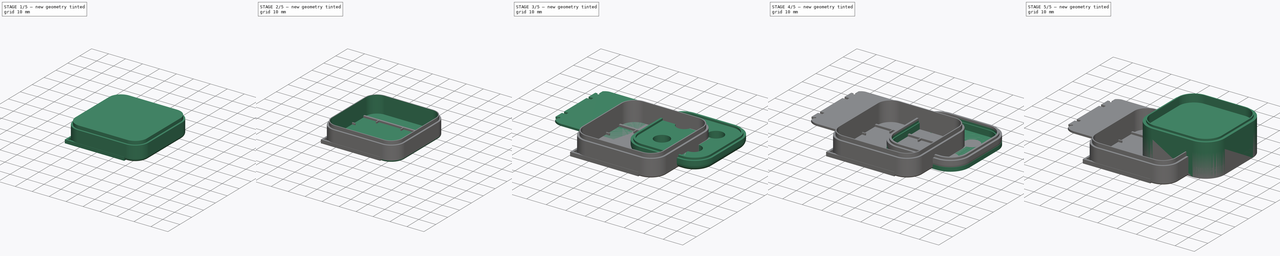
[diagram: build sequence overview — one tinted view per stage of 5, left to right]
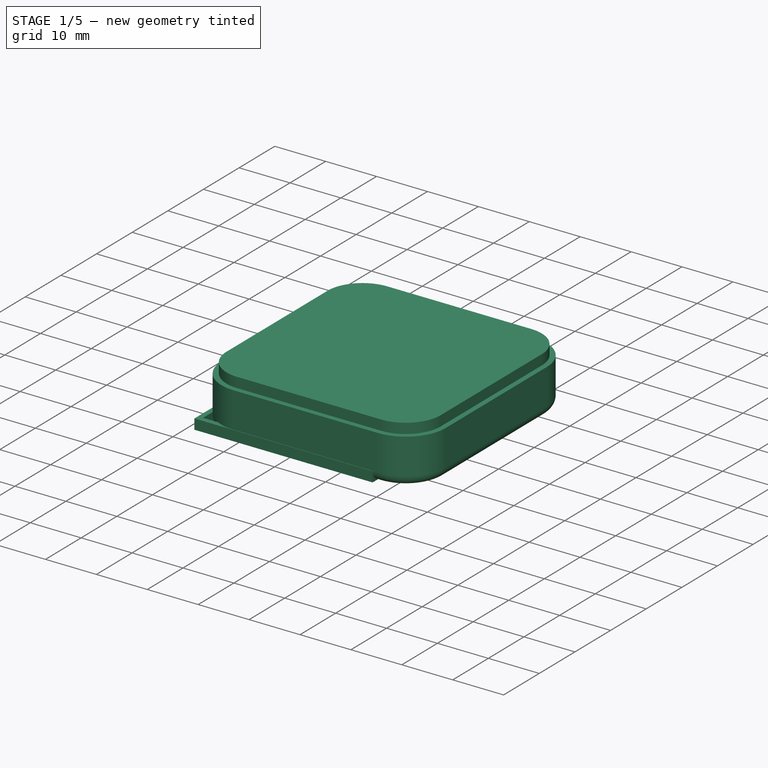
[diagram: stage 1 of 5 — iso view after this stage's code; geometry added in this stage tinted green]
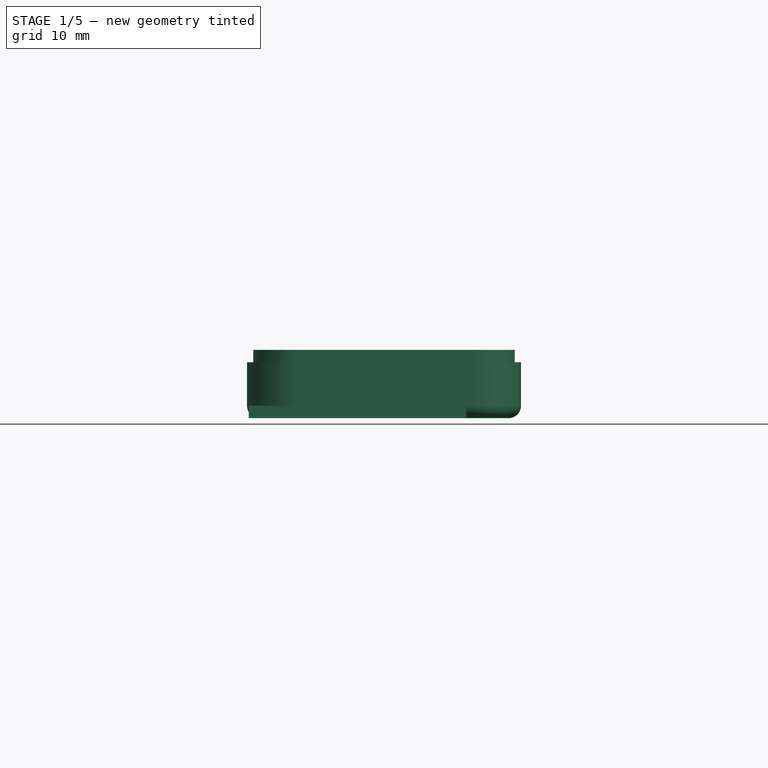
[diagram: stage 1 of 5 — front view after this stage's code; geometry added in this stage tinted green]
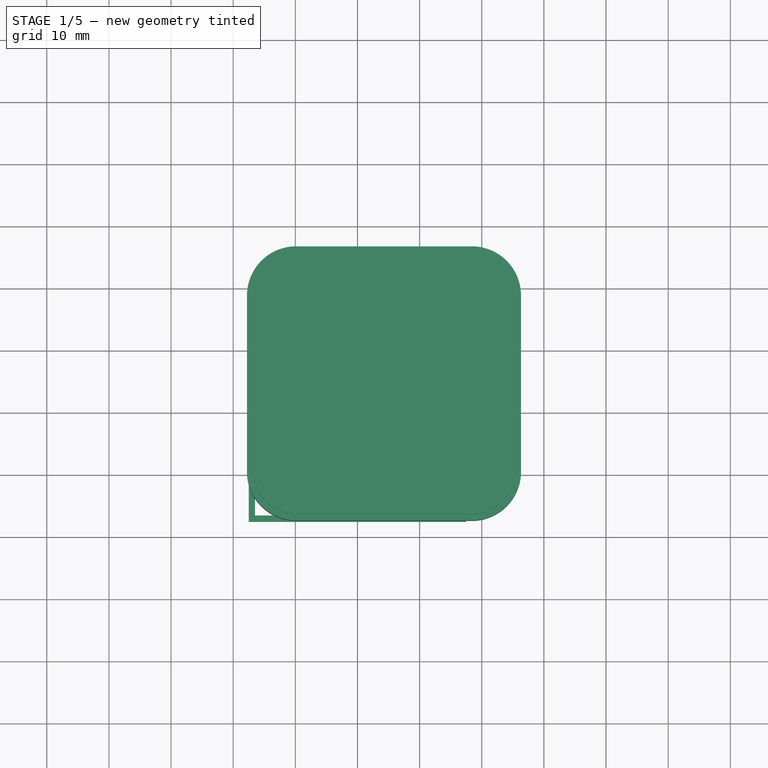
[diagram: stage 1 of 5 — top view after this stage's code; geometry added in this stage tinted green]
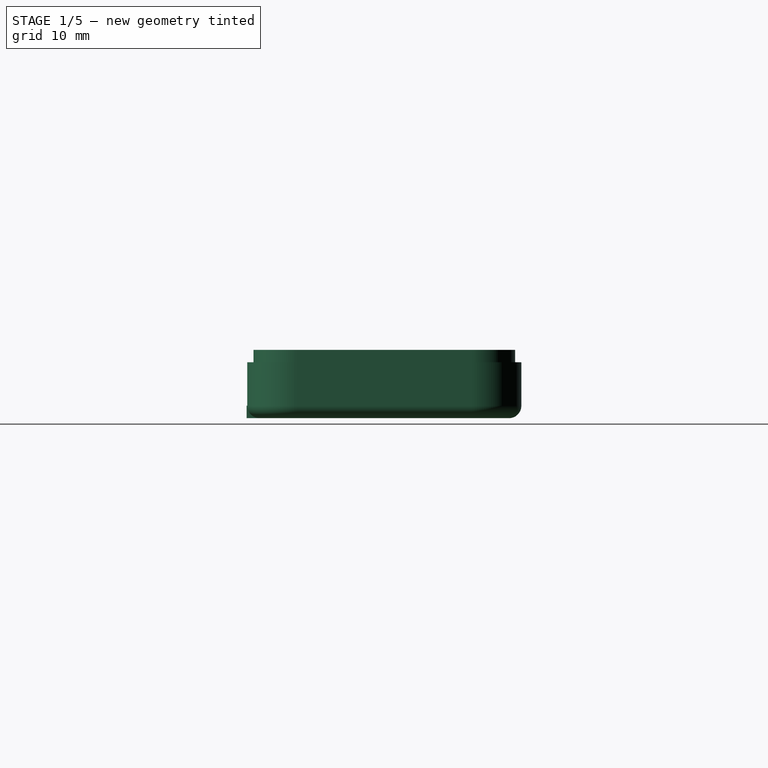
[diagram: stage 1 of 5 — right view after this stage's code; geometry added in this stage tinted green]
FCSTD DOCUMENT  (FreeCAD 1.0R39109 (Git))
Label: Luz
License: All rights reserved
LicenseURL: http://en.wikipedia.org/wiki/All_rights_reserved
objects: Sketcher::SketchObject×33, PartDesign::Pad×12, PartDesign::Pocket×9, PartDesign::Body×8, Image::ImagePlane×4, PartDesign::Fillet×4, Part::Offset2D×3
note: 152 computed .brp shape members not serialized (recipe doc carries the construction recipe); baked Part::Feature solids carry a one-line shape summary decoded from their .brp

FEATURE [Sketcher::SketchObject] Sketch026
  ArcFitTolerance = 1e-06
  AttachmentSupport = -> [XY_Plane005]
  FullyConstrained = false
  MakeInternals = false
  MapMode = 5
  sketch-geometry (4):
    g0: LineSegment StartX=-21.3244 StartY=28.2259 StartZ=0 EndX=-21.3244 EndY=-20.2767 EndZ=0
    g1: LineSegment StartX=-21.3244 StartY=-20.2767 StartZ=0 EndX=-3.339 EndY=-20.2767 EndZ=0
    g2: LineSegment StartX=-3.339 StartY=-20.2767 StartZ=0 EndX=-3.339 EndY=28.2259 EndZ=0
    g3: LineSegment StartX=-3.339 StartY=28.2259 StartZ=0 EndX=-21.3244 EndY=28.2259 EndZ=0
  constraints (8):
    c: Coincident(g0,g1)
    c: Coincident(g1,g2)
    c: Coincident(g2,g3)
    c: Coincident(g3,g0)
    c: Vertical(g0)
    c: Vertical(g2)
    c: Horizontal(g1)
    c: Horizontal(g3)
FEATURE [PartDesign::Body] Body005  label="Body"
  AllowCompound = false
  Group = -> [Sketch023,Sketch024,Sketch025,Pad008,Pocket005,Pocket006,Fillet002,Sketch026]
  Origin = -> Origin005
  Tip = -> Fillet002
FEATURE [Sketcher::SketchObject] Sketch027
  ArcFitTolerance = 1e-06
  AttachmentOffset = pos=(0,0,1) rot=(0,0,1;0rad)
  AttachmentSupport = -> [XY_Plane006]
  FullyConstrained = false
  MakeInternals = false
  MapMode = 5
  Placement = pos=(0,0,1) rot=(0,0,1;0rad)
  sketch-geometry (10):
    g0: LineSegment StartX=-16.7796 StartY=18.7921 StartZ=0 EndX=-16.7796 EndY=-9.48962 EndZ=0
    g1: LineSegment StartX=-9.87213 StartY=-16.3971 StartZ=0 EndX=18.4096 EndY=-16.3971 EndZ=0
    g2: LineSegment StartX=25.3171 StartY=-9.48962 StartZ=0 EndX=25.3171 EndY=18.7921 EndZ=0
    g3: LineSegment StartX=18.4096 StartY=25.6996 StartZ=0 EndX=-9.87213 EndY=25.6996 EndZ=0
    g4: ArcOfCircle CenterX=-9.87213 CenterY=18.7921 CenterZ=0 NormalX=0 NormalY=0 NormalZ=1 AngleXU=0 Radius=6.90746 StartAngle=1.5708 EndAngle=3.14159
    g5: ArcOfCircle CenterX=-9.87213 CenterY=-9.48962 CenterZ=0 NormalX=0 NormalY=0 NormalZ=1 AngleXU=0 Radius=6.90746 StartAngle=3.14159 EndAngle=4.71239
    g6: ArcOfCircle CenterX=18.4096 CenterY=-9.48962 CenterZ=0 NormalX=0 NormalY=0 NormalZ=1 AngleXU=0 Radius=6.90746 StartAngle=4.71239 EndAngle=6.28319
    g7: ArcOfCircle CenterX=18.4096 CenterY=18.7921 CenterZ=0 NormalX=0 NormalY=0 NormalZ=1 AngleXU=0 Radius=6.90746 StartAngle=0 EndAngle=1.5708
    g8: GeomPoint [constr] X=-16.7796 Y=25.6996 Z=0
    g9: GeomPoint [constr] X=25.3171 Y=-16.3971 Z=0
  constraints (20):
    c: Tangent(g0,g4) = -1.5708
    c: Tangent(g0,g5) = -1.5708
    c: Tangent(g1,g5) = -1.5708
    c: Tangent(g1,g6) = -1.5708
    c: Tangent(g2,g6) = -1.5708
    c: Tangent(g2,g7) = -1.5708
    c: Tangent(g3,g7) = -1.5708
    c: Tangent(g3,g4) = -1.5708
    c: Vertical(g0)
    c: Vertical(g2)
    c: Horizontal(g1)
    c: Horizontal(g3)
    c: Equal(g4,g5)
    c: Equal(g5,g6)
    c: Equal(g6,g7)
    c: PointOnObject(g8,g0)
    c: PointOnObject(g8,g3)
    c: PointOnObject(g9,g1)
    c: PointOnObject(g9,g2)
    c: Equal(g0,g3)
FEATURE [Sketcher::SketchObject] Sketch028
  ArcFitTolerance = 1e-06
  FullyConstrained = false
  MakeInternals = false
  sketch-geometry (8):
    g0: LineSegment StartX=-17.7796 StartY=18.7921 StartZ=0 EndX=-17.7796 EndY=-9.48962 EndZ=0
    g1: ArcOfCircle CenterX=-9.87213 CenterY=-9.48962 CenterZ=0 NormalX=0 NormalY=0 NormalZ=1 AngleXU=0 Radius=7.90746 StartAngle=3.14159 EndAngle=4.71239
    g2: LineSegment StartX=-9.87213 StartY=-17.3971 StartZ=0 EndX=18.4096 EndY=-17.3971 EndZ=0
    g3: ArcOfCircle CenterX=18.4096 CenterY=-9.48962 CenterZ=0 NormalX=0 NormalY=0 NormalZ=1 AngleXU=0 Radius=7.90746 StartAngle=4.71239 EndAngle=6.28319
    g4: LineSegment StartX=26.3171 StartY=-9.48962 StartZ=0 EndX=26.3171 EndY=18.7921 EndZ=0
    g5: ArcOfCircle CenterX=18.4096 CenterY=18.7921 CenterZ=0 NormalX=0 NormalY=0 NormalZ=1 AngleXU=0 Radius=7.90746 StartAngle=0 EndAngle=1.5708
    g6: LineSegment StartX=18.4096 StartY=26.6996 StartZ=0 EndX=-9.87213 EndY=26.6996 EndZ=0
    g7: ArcOfCircle CenterX=-9.87213 CenterY=18.7921 CenterZ=0 NormalX=0 NormalY=0 NormalZ=1 AngleXU=0 Radius=7.90746 StartAngle=1.5708 EndAngle=3.14159
  constraints (12):
    c: Vertical(g0)
    c: Coincident(g0,g1)
    c: Coincident(g1,g2)
    c: Horizontal(g2)
    c: Coincident(g2,g3)
    c: Coincident(g3,g4)
    c: Vertical(g4)
    c: Coincident(g4,g5)
    c: Coincident(g5,g6)
    c: Horizontal(g6)
    c: Coincident(g6,g7)
    c: Coincident(g7,g0)
FEATURE [PartDesign::Pad] Pad009
  Direction = (0,0,1)
  Length = 9
  Length2 = 10
  Profile = -> Sketch028
  ReferenceAxis = -> Sketch028 [N_Axis]
  Suppressed = false
  Type = 0
FEATURE [PartDesign::Pocket] Pocket008
  BaseFeature = -> Pad009
  Direction = (0,0,-1)
  Length = 5
  Length2 = 5
  Profile = -> Sketch027
  ReferenceAxis = -> Sketch027 [N_Axis]
  Reversed = true
  Suppressed = false
  Type = 1
FEATURE [PartDesign::Fillet] Fillet003
  Base = -> Pocket008 [Edge15]
  BaseFeature = -> Pocket008
  Radius = 2
  SupportTransform = false
  Suppressed = false
  UseAllEdges = false
FEATURE [Sketcher::SketchObject] Sketch029
  ArcFitTolerance = 1e-06
  AttachmentOffset = pos=(0,0,1) rot=(0,0,1;0rad)
  AttachmentSupport = -> [XY_Plane006]
  FullyConstrained = false
  MakeInternals = false
  MapMode = 5
  Placement = pos=(0,0,1) rot=(0,0,1;0rad)
  sketch-geometry (10):
    g0: LineSegment StartX=-16.7796 StartY=18.7921 StartZ=0 EndX=-16.7796 EndY=-9.48962 EndZ=0
    g1: LineSegment StartX=-9.87213 StartY=-16.3971 StartZ=0 EndX=18.4096 EndY=-16.3971 EndZ=0
    g2: LineSegment StartX=25.3171 StartY=-9.48962 StartZ=0 EndX=25.3171 EndY=18.7921 EndZ=0
    g3: LineSegment StartX=18.4096 StartY=25.6996 StartZ=0 EndX=-9.87213 EndY=25.6996 EndZ=0
    g4: ArcOfCircle CenterX=-9.87213 CenterY=18.7921 CenterZ=0 NormalX=0 NormalY=0 NormalZ=1 AngleXU=0 Radius=6.90746 StartAngle=1.5708 EndAngle=3.14159
    g5: ArcOfCircle CenterX=-9.87213 CenterY=-9.48962 CenterZ=0 NormalX=0 NormalY=0 NormalZ=1 AngleXU=0 Radius=6.90746 StartAngle=3.14159 EndAngle=4.71239
    g6: ArcOfCircle CenterX=18.4096 CenterY=-9.48962 CenterZ=0 NormalX=0 NormalY=0 NormalZ=1 AngleXU=0 Radius=6.90746 StartAngle=4.71239 EndAngle=6.28319
    g7: ArcOfCircle CenterX=18.4096 CenterY=18.7921 CenterZ=0 NormalX=0 NormalY=0 NormalZ=1 AngleXU=0 Radius=6.90746 StartAngle=0 EndAngle=1.5708
    g8: GeomPoint [constr] X=-16.7796 Y=25.6996 Z=0
    g9: GeomPoint [constr] X=25.3171 Y=-16.3971 Z=0
  constraints (20):
    c: Tangent(g0,g4) = -1.5708
    c: Tangent(g0,g5) = -1.5708
    c: Tangent(g1,g5) = -1.5708
    c: Tangent(g1,g6) = -1.5708
    c: Tangent(g2,g6) = -1.5708
    c: Tangent(g2,g7) = -1.5708
    c: Tangent(g3,g7) = -1.5708
    c: Tangent(g3,g4) = -1.5708
    c: Vertical(g0)
    c: Vertical(g2)
    c: Horizontal(g1)
    c: Horizontal(g3)
    c: Equal(g4,g5)
    c: Equal(g5,g6)
    c: Equal(g6,g7)
    c: PointOnObject(g8,g0)
    c: PointOnObject(g8,g3)
    c: PointOnObject(g9,g1)
    c: PointOnObject(g9,g2)
    c: Equal(g0,g3)
FEATURE [PartDesign::Pad] Pad010
  BaseFeature = -> Fillet003
  Direction = (0,0,1)
  Length = 10
  Length2 = 10
  Profile = -> Sketch029
  ReferenceAxis = -> Sketch029 [N_Axis]
  Suppressed = false
  Type = 0
FEATURE [Sketcher::SketchObject] Sketch031
  ArcFitTolerance = 1e-06
  AttachmentSupport = -> [XY_Plane006]
  FullyConstrained = false
  MakeInternals = false
  MapMode = 5
  sketch-geometry (36):
    g0: ArcOfCircle CenterX=-7.75329 CenterY=32.6278 CenterZ=0 NormalX=0 NormalY=0 NormalZ=1 AngleXU=0 Radius=0.745564 StartAngle=1.66961 EndAngle=4.67807
    g1: LineSegment StartX=-5.89907 StartY=15.4976 StartZ=0 EndX=-8.49809 EndY=15.4976 EndZ=0
    g2: LineSegment StartX=-8.49809 StartY=15.4976 StartZ=0 EndX=-8.49809 EndY=13.9146 EndZ=0
    g3: LineSegment StartX=-8.49809 StartY=13.9146 StartZ=0 EndX=-5.89907 EndY=13.9146 EndZ=0
    g4: LineSegment StartX=-43.7648 StartY=32.0142 StartZ=0 EndX=-41.3266 EndY=32.0142 EndZ=0
    g5: LineSegment StartX=-41.3266 StartY=32.0142 StartZ=0 EndX=-41.3266 EndY=33.5492 EndZ=0
    g6: LineSegment StartX=-41.3266 StartY=33.5492 StartZ=0 EndX=-43.7648 EndY=33.5492 EndZ=0
    g7: LineSegment StartX=-43.7648 StartY=14.054 StartZ=0 EndX=-41.5178 EndY=14.054 EndZ=0
    g8: LineSegment StartX=-41.5178 StartY=14.054 StartZ=0 EndX=-41.5178 EndY=15.589 EndZ=0
    g9: LineSegment StartX=-41.5178 StartY=15.589 StartZ=0 EndX=-43.7648 EndY=15.589 EndZ=0
    g10: LineSegment StartX=-42.7478 StartY=9.38222 StartZ=0 EndX=-43.7648 EndY=9.38222 EndZ=0
    g11: ArcOfCircle CenterX=-42.136 CenterY=9.38222 CenterZ=0 NormalX=0 NormalY=0 NormalZ=1 AngleXU=0 Radius=0.611851 StartAngle=4.71239 EndAngle=9.42478
    g12: ArcOfCircle CenterX=-37.5433 CenterY=11.3763 CenterZ=0 NormalX=0 NormalY=0 NormalZ=1 AngleXU=0 Radius=6.52561 StartAngle=3.93167 EndAngle=4.77314
    g13: LineSegment StartX=-5.89907 StartY=9.38863 StartZ=0 EndX=-7.09462 EndY=9.38863 EndZ=0
    g14: ArcOfCircle CenterX=-7.61606 CenterY=9.18547 CenterZ=0 NormalX=0 NormalY=0 NormalZ=1 AngleXU=0 Radius=0.559622 StartAngle=0.371532 EndAngle=5.04448
    g15: ArcOfCircle CenterX=-10.757 CenterY=9.49183 CenterZ=0 NormalX=0 NormalY=0 NormalZ=1 AngleXU=0 Radius=4.63135 StartAngle=4.68148 EndAngle=5.51273
    g16: LineSegment StartX=-7.18957 StartY=38.1478 StartZ=0 EndX=-5.89907 EndY=38.1478 EndZ=0
    g17: ArcOfCircle CenterX=-7.7718 CenterY=38.1217 CenterZ=0 NormalX=0 NormalY=0 NormalZ=1 AngleXU=0 Radius=0.582812 StartAngle=1.39094 EndAngle=6.32792
    g18: ArcOfCircle CenterX=-11.3622 CenterY=37.866 CenterZ=0 NormalX=0 NormalY=0 NormalZ=1 AngleXU=0 Radius=4.82075 StartAngle=0.697579 EndAngle=1.57755
    g19: LineSegment StartX=-43.7648 StartY=38.4984 StartZ=0 EndX=-42.6882 EndY=38.4984 EndZ=0
    g20: ArcOfCircle CenterX=-42.0985 CenterY=38.3323 CenterZ=0 NormalX=0 NormalY=0 NormalZ=1 AngleXU=0 Radius=0.612631 StartAngle=2.86711 EndAngle=7.76351
    g21: ArcOfCircle CenterX=-38.956 CenterY=38.4832 CenterZ=0 NormalX=0 NormalY=0 NormalZ=1 AngleXU=0 Radius=4.2311 StartAngle=1.68522 EndAngle=2.38858
    g22: LineSegment StartX=-43.7648 StartY=15.589 StartZ=0 EndX=-43.7648 EndY=32.0142 EndZ=0
    g23: LineSegment StartX=-43.7648 StartY=33.5492 StartZ=0 EndX=-43.7648 EndY=38.4984 EndZ=0
    g24: LineSegment StartX=-39.4391 StartY=42.6867 StartZ=0 EndX=-11.3947 EndY=42.6867 EndZ=0
    g25: LineSegment StartX=-42.0432 StartY=38.9424 StartZ=0 EndX=-42.0432 EndY=41.3767 EndZ=0
    g26: LineSegment StartX=-7.66755 StartY=40.9627 StartZ=0 EndX=-7.66755 EndY=38.6951 EndZ=0
    g27: LineSegment StartX=-5.89907 StartY=38.1478 StartZ=0 EndX=-5.89907 EndY=33.3697 EndZ=0
    g28: LineSegment StartX=-5.89907 StartY=31.8827 StartZ=0 EndX=-5.89907 EndY=15.4976 EndZ=0
    g29: LineSegment StartX=-7.77888 StartY=31.8827 StartZ=0 EndX=-5.89907 EndY=31.8827 EndZ=0
    g30: LineSegment StartX=-7.82685 StartY=33.3697 StartZ=0 EndX=-5.89907 EndY=33.3697 EndZ=0
    g31: LineSegment StartX=-5.89907 StartY=13.9146 StartZ=0 EndX=-5.89907 EndY=9.38863 EndZ=0
    g32: LineSegment StartX=-10.9001 StartY=4.86269 StartZ=0 EndX=-37.1472 EndY=4.86269 EndZ=0
    g33: LineSegment StartX=-7.43361 StartY=8.65642 StartZ=0 EndX=-7.43361 EndY=6.26627 EndZ=0
    g34: LineSegment StartX=-42.136 StartY=8.77037 StartZ=0 EndX=-42.136 EndY=6.74042 EndZ=0
    g35: LineSegment StartX=-43.7648 StartY=14.054 StartZ=0 EndX=-43.7648 EndY=9.38222 EndZ=0
  constraints (63):
    c: Coincident(g1,g2)
    c: Coincident(g2,g3)
    c: Horizontal(g1)
    c: Horizontal(g3)
    c: Vertical(g2)
    c: Coincident(g4,g5)
    c: Coincident(g5,g6)
    c: Vertical(g5)
    c: Horizontal(g4)
    c: Horizontal(g6)
    c: Coincident(g7,g8)
    c: Coincident(g8,g9)
    c: Vertical(g8)
    c: Horizontal(g7)
    c: Horizontal(g9)
    c: Horizontal(g10)
    c: Coincident(g10,g11)
    c: Horizontal(g13)
    c: Coincident(g14,g13)
    c: Horizontal(g16)
    c: Coincident(g16,g17)
    c: Horizontal(g19)
    c: Coincident(g20,g19)
    c: Coincident(g22,g9)
    c: Coincident(g22,g4)
    c: Vertical(g22)
    c: Coincident(g23,g6)
    c: Coincident(g23,g19)
    c: Vertical(g23)
    c: Coincident(g24,g21)
    c: Coincident(g24,g18)
    c: Horizontal(g24)
    c: Coincident(g25,g20)
    c: Coincident(g25,g21)
    c: Vertical(g25)
    c: Coincident(g26,g18)
    c: Coincident(g26,g17)
    c: Vertical(g26)
    c: Coincident(g27,g16)
    c: Vertical(g27)
    c: Coincident(g28,g1)
    c: Vertical(g28)
    c: Coincident(g29,g0)
    c: Coincident(g29,g28)
    c: Horizontal(g29)
    c: Coincident(g30,g0)
    c: Coincident(g30,g27)
    c: Horizontal(g30)
    c: Coincident(g31,g3)
    c: Coincident(g31,g13)
    c: Vertical(g31)
    c: Coincident(g32,g15)
    c: Coincident(g32,g12)
    c: Horizontal(g32)
    c: Coincident(g33,g14)
    c: Coincident(g33,g15)
    c: Vertical(g33)
    c: Coincident(g34,g11)
    c: Coincident(g34,g12)
    c: Vertical(g34)
    c: Coincident(g35,g7)
    c: Coincident(g35,g10)
    c: Vertical(g35)
FEATURE [Sketcher::SketchObject] Sketch032
  ArcFitTolerance = 1e-06
  AttachmentSupport = -> [XY_Plane006]
  FullyConstrained = false
  MakeInternals = false
  MapMode = 5
  sketch-geometry (36):
    g0: ArcOfCircle CenterX=-7.75329 CenterY=32.6278 CenterZ=0 NormalX=0 NormalY=0 NormalZ=1 AngleXU=0 Radius=0.745564 StartAngle=1.66961 EndAngle=4.67807
    g1: LineSegment StartX=-5.89907 StartY=15.4976 StartZ=0 EndX=-8.49809 EndY=15.4976 EndZ=0
    g2: LineSegment StartX=-8.49809 StartY=15.4976 StartZ=0 EndX=-8.49809 EndY=13.9146 EndZ=0
    g3: LineSegment StartX=-8.49809 StartY=13.9146 StartZ=0 EndX=-5.89907 EndY=13.9146 EndZ=0
    g4: LineSegment StartX=-43.7648 StartY=32.0142 StartZ=0 EndX=-41.3266 EndY=32.0142 EndZ=0
    g5: LineSegment StartX=-41.3266 StartY=32.0142 StartZ=0 EndX=-41.3266 EndY=33.5492 EndZ=0
    g6: LineSegment StartX=-41.3266 StartY=33.5492 StartZ=0 EndX=-43.7648 EndY=33.5492 EndZ=0
    g7: LineSegment StartX=-43.7648 StartY=14.054 StartZ=0 EndX=-41.5178 EndY=14.054 EndZ=0
    g8: LineSegment StartX=-41.5178 StartY=14.054 StartZ=0 EndX=-41.5178 EndY=15.589 EndZ=0
    g9: LineSegment StartX=-41.5178 StartY=15.589 StartZ=0 EndX=-43.7648 EndY=15.589 EndZ=0
    g10: LineSegment StartX=-42.7478 StartY=9.38222 StartZ=0 EndX=-43.7648 EndY=9.38222 EndZ=0
    g11: ArcOfCircle CenterX=-42.136 CenterY=9.38222 CenterZ=0 NormalX=0 NormalY=0 NormalZ=1 AngleXU=0 Radius=0.611851 StartAngle=4.71239 EndAngle=9.42478
    g12: ArcOfCircle CenterX=-37.5433 CenterY=11.3763 CenterZ=0 NormalX=0 NormalY=0 NormalZ=1 AngleXU=0 Radius=6.52561 StartAngle=3.93167 EndAngle=4.77314
    g13: LineSegment StartX=-5.89907 StartY=9.38863 StartZ=0 EndX=-7.09462 EndY=9.38863 EndZ=0
    g14: ArcOfCircle CenterX=-7.61606 CenterY=9.18547 CenterZ=0 NormalX=0 NormalY=0 NormalZ=1 AngleXU=0 Radius=0.559622 StartAngle=0.371532 EndAngle=5.04448
    g15: ArcOfCircle CenterX=-10.757 CenterY=9.49183 CenterZ=0 NormalX=0 NormalY=0 NormalZ=1 AngleXU=0 Radius=4.63135 StartAngle=4.68148 EndAngle=5.51273
    g16: LineSegment StartX=-7.18957 StartY=38.1478 StartZ=0 EndX=-5.89907 EndY=38.1478 EndZ=0
    g17: ArcOfCircle CenterX=-7.7718 CenterY=38.1217 CenterZ=0 NormalX=0 NormalY=0 NormalZ=1 AngleXU=0 Radius=0.582812 StartAngle=1.39094 EndAngle=6.32792
    g18: ArcOfCircle CenterX=-11.3622 CenterY=37.866 CenterZ=0 NormalX=0 NormalY=0 NormalZ=1 AngleXU=0 Radius=4.82075 StartAngle=0.697579 EndAngle=1.57755
    g19: LineSegment StartX=-43.7648 StartY=38.4984 StartZ=0 EndX=-42.6882 EndY=38.4984 EndZ=0
    g20: ArcOfCircle CenterX=-42.0985 CenterY=38.3323 CenterZ=0 NormalX=0 NormalY=0 NormalZ=1 AngleXU=0 Radius=0.612631 StartAngle=2.86711 EndAngle=7.76351
    g21: ArcOfCircle CenterX=-38.956 CenterY=38.4832 CenterZ=0 NormalX=0 NormalY=0 NormalZ=1 AngleXU=0 Radius=4.2311 StartAngle=1.68522 EndAngle=2.38858
    g22: LineSegment StartX=-43.7648 StartY=15.589 StartZ=0 EndX=-43.7648 EndY=32.0142 EndZ=0
    g23: LineSegment StartX=-43.7648 StartY=33.5492 StartZ=0 EndX=-43.7648 EndY=38.4984 EndZ=0
    g24: LineSegment StartX=-39.4391 StartY=42.6867 StartZ=0 EndX=-11.3947 EndY=42.6867 EndZ=0
    g25: LineSegment StartX=-42.0432 StartY=38.9424 StartZ=0 EndX=-42.0432 EndY=41.3767 EndZ=0
    g26: LineSegment StartX=-7.66755 StartY=40.9627 StartZ=0 EndX=-7.66755 EndY=38.6951 EndZ=0
    g27: LineSegment StartX=-5.89907 StartY=38.1478 StartZ=0 EndX=-5.89907 EndY=33.3697 EndZ=0
    g28: LineSegment StartX=-5.89907 StartY=31.8827 StartZ=0 EndX=-5.89907 EndY=15.4976 EndZ=0
    g29: LineSegment StartX=-7.77888 StartY=31.8827 StartZ=0 EndX=-5.89907 EndY=31.8827 EndZ=0
    g30: LineSegment StartX=-7.82685 StartY=33.3697 StartZ=0 EndX=-5.89907 EndY=33.3697 EndZ=0
    g31: LineSegment StartX=-5.89907 StartY=13.9146 StartZ=0 EndX=-5.89907 EndY=9.38863 EndZ=0
    g32: LineSegment StartX=-10.9001 StartY=4.86269 StartZ=0 EndX=-37.1472 EndY=4.86269 EndZ=0
    g33: LineSegment StartX=-7.43361 StartY=8.65642 StartZ=0 EndX=-7.43361 EndY=6.26627 EndZ=0
    g34: LineSegment StartX=-42.136 StartY=8.77037 StartZ=0 EndX=-42.136 EndY=6.74042 EndZ=0
    g35: LineSegment StartX=-43.7648 StartY=14.054 StartZ=0 EndX=-43.7648 EndY=9.38222 EndZ=0
  constraints (63):
    c: Coincident(g1,g2)
    c: Coincident(g2,g3)
    c: Horizontal(g1)
    c: Horizontal(g3)
    c: Vertical(g2)
    c: Coincident(g4,g5)
    c: Coincident(g5,g6)
    c: Vertical(g5)
    c: Horizontal(g4)
    c: Horizontal(g6)
    c: Coincident(g7,g8)
    c: Coincident(g8,g9)
    c: Vertical(g8)
    c: Horizontal(g7)
    c: Horizontal(g9)
    c: Horizontal(g10)
    c: Coincident(g10,g11)
    c: Horizontal(g13)
    c: Coincident(g14,g13)
    c: Horizontal(g16)
    c: Coincident(g16,g17)
    c: Horizontal(g19)
    c: Coincident(g20,g19)
    c: Coincident(g22,g9)
    c: Coincident(g22,g4)
    c: Vertical(g22)
    c: Coincident(g23,g6)
    c: Coincident(g23,g19)
    c: Vertical(g23)
    c: Coincident(g24,g21)
    c: Coincident(g24,g18)
    c: Horizontal(g24)
    c: Coincident(g25,g20)
    c: Coincident(g25,g21)
    c: Vertical(g25)
    c: Coincident(g26,g18)
    c: Coincident(g26,g17)
    c: Vertical(g26)
    c: Coincident(g27,g16)
    c: Vertical(g27)
    c: Coincident(g28,g1)
    c: Vertical(g28)
    c: Coincident(g29,g0)
    c: Coincident(g29,g28)
    c: Horizontal(g29)
    c: Coincident(g30,g0)
    c: Coincident(g30,g27)
    c: Horizontal(g30)
    c: Coincident(g31,g3)
    c: Coincident(g31,g13)
    c: Vertical(g31)
    c: Coincident(g32,g15)
    c: Coincident(g32,g12)
    c: Horizontal(g32)
    c: Coincident(g33,g14)
    c: Coincident(g33,g15)
    c: Vertical(g33)
    c: Coincident(g34,g11)
    c: Coincident(g34,g12)
    c: Vertical(g34)
    c: Coincident(g35,g7)
    c: Coincident(g35,g10)
    c: Vertical(g35)
FEATURE [PartDesign::Body] Body006
  AllowCompound = false
  Group = -> [Sketch027,Sketch028,Pad009,Pocket008,Fillet003,Sketch029,Sketch030,Pad010,Pocket009,Sketch031,Sketch032]
  Origin = -> Origin006
  Tip = -> Pocket009
FEATURE [Sketcher::SketchObject] Sketch033
  ArcFitTolerance = 1e-06
  AttachmentSupport = -> [XY_Plane007]
  FullyConstrained = false
  MakeInternals = false
  MapMode = 5
  sketch-geometry (69):
    g0: ArcOfCircle [constr] CenterX=-7.75329 CenterY=32.6278 CenterZ=0 NormalX=0 NormalY=0 NormalZ=1 AngleXU=0 Radius=0.745564 StartAngle=1.66961 EndAngle=4.67807
    g1: LineSegment [constr] StartX=-5.89907 StartY=15.4976 StartZ=0 EndX=-8.49809 EndY=15.4976 EndZ=0
    g2: LineSegment [constr] StartX=-8.49809 StartY=15.4976 StartZ=0 EndX=-8.49809 EndY=13.9146 EndZ=0
    g3: LineSegment [constr] StartX=-8.49809 StartY=13.9146 StartZ=0 EndX=-5.89907 EndY=13.9146 EndZ=0
    g4: LineSegment [constr] StartX=-43.7648 StartY=32.0142 StartZ=0 EndX=-41.3266 EndY=32.0142 EndZ=0
    g5: LineSegment [constr] StartX=-41.3266 StartY=32.0142 StartZ=0 EndX=-41.3266 EndY=33.5492 EndZ=0
    g6: LineSegment [constr] StartX=-41.3266 StartY=33.5492 StartZ=0 EndX=-43.7648 EndY=33.5492 EndZ=0
    g7: LineSegment [constr] StartX=-43.7648 StartY=14.054 StartZ=0 EndX=-41.5178 EndY=14.054 EndZ=0
    g8: LineSegment [constr] StartX=-41.5178 StartY=15.589 StartZ=0 EndX=-43.7648 EndY=15.589 EndZ=0
    g9: LineSegment [constr] StartX=-42.7478 StartY=9.38222 StartZ=0 EndX=-43.7648 EndY=9.38222 EndZ=0
    g10: ArcOfCircle [constr] CenterX=-42.136 CenterY=9.38222 CenterZ=0 NormalX=0 NormalY=0 NormalZ=1 AngleXU=0 Radius=0.611851 StartAngle=4.71239 EndAngle=9.42478
    g11: ArcOfCircle [constr] CenterX=-37.5433 CenterY=11.3763 CenterZ=0 NormalX=0 NormalY=0 NormalZ=1 AngleXU=0 Radius=6.52561 StartAngle=3.93167 EndAngle=4.77314
    g12: LineSegment [constr] StartX=-5.89907 StartY=9.38863 StartZ=0 EndX=-7.09462 EndY=9.38863 EndZ=0
    g13: ArcOfCircle [constr] CenterX=-7.61606 CenterY=9.18547 CenterZ=0 NormalX=0 NormalY=0 NormalZ=1 AngleXU=0 Radius=0.559622 StartAngle=0.371532 EndAngle=5.04448
    g14: ArcOfCircle [constr] CenterX=-10.757 CenterY=9.49183 CenterZ=0 NormalX=0 NormalY=0 NormalZ=1 AngleXU=0 Radius=4.63135 StartAngle=4.68148 EndAngle=5.51273
    g15: LineSegment [constr] StartX=-7.18957 StartY=38.1478 StartZ=0 EndX=-5.89907 EndY=38.1478 EndZ=0
    g16: ArcOfCircle [constr] CenterX=-7.7718 CenterY=38.1217 CenterZ=0 NormalX=0 NormalY=0 NormalZ=1 AngleXU=0 Radius=0.582812 StartAngle=1.39094 EndAngle=6.32792
    g17: ArcOfCircle [constr] CenterX=-11.3622 CenterY=37.866 CenterZ=0 NormalX=0 NormalY=0 NormalZ=1 AngleXU=0 Radius=4.82075 StartAngle=0.697579 EndAngle=1.57755
    g18: LineSegment [constr] StartX=-43.7648 StartY=38.4984 StartZ=0 EndX=-42.6882 EndY=38.4984 EndZ=0
    g19: ArcOfCircle [constr] CenterX=-42.0985 CenterY=38.3323 CenterZ=0 NormalX=0 NormalY=0 NormalZ=1 AngleXU=0 Radius=0.612631 StartAngle=2.86711 EndAngle=7.76351
    g20: ArcOfCircle [constr] CenterX=-38.956 CenterY=38.4832 CenterZ=0 NormalX=0 NormalY=0 NormalZ=1 AngleXU=0 Radius=4.2311 StartAngle=1.68522 EndAngle=2.38858
    g21: LineSegment [constr] StartX=-43.7648 StartY=15.589 StartZ=0 EndX=-43.7648 EndY=32.0142 EndZ=0
    g22: LineSegment [constr] StartX=-43.7648 StartY=33.5492 StartZ=0 EndX=-43.7648 EndY=38.4984 EndZ=0
    g23: LineSegment [constr] StartX=-39.4391 StartY=42.6867 StartZ=0 EndX=-11.3947 EndY=42.6867 EndZ=0
    g24: LineSegment [constr] StartX=-42.0432 StartY=38.9424 StartZ=0 EndX=-42.0432 EndY=41.3767 EndZ=0
    g25: LineSegment [constr] StartX=-7.66755 StartY=40.9627 StartZ=0 EndX=-7.66755 EndY=38.6951 EndZ=0
    g26: LineSegment [constr] StartX=-5.89907 StartY=38.1478 StartZ=0 EndX=-5.89907 EndY=33.3697 EndZ=0
    g27: LineSegment [constr] StartX=-5.89907 StartY=31.8827 StartZ=0 EndX=-5.89907 EndY=15.4976 EndZ=0
    g28: LineSegment [constr] StartX=-7.77888 StartY=31.8827 StartZ=0 EndX=-5.89907 EndY=31.8827 EndZ=0
    g29: LineSegment [constr] StartX=-7.82685 StartY=33.3697 StartZ=0 EndX=-5.89907 EndY=33.3697 EndZ=0
    g30: LineSegment [constr] StartX=-5.89907 StartY=13.9146 StartZ=0 EndX=-5.89907 EndY=9.38863 EndZ=0
    g31: LineSegment [constr] StartX=-10.9001 StartY=4.86269 StartZ=0 EndX=-37.1472 EndY=4.86269 EndZ=0
    g32: LineSegment [constr] StartX=-7.43361 StartY=8.65642 StartZ=0 EndX=-7.43361 EndY=6.26627 EndZ=0
    g33: LineSegment [constr] StartX=-42.136 StartY=8.77037 StartZ=0 EndX=-42.136 EndY=6.74042 EndZ=0
    g34: LineSegment [constr] StartX=-43.7648 StartY=14.054 StartZ=0 EndX=-43.7648 EndY=9.38222 EndZ=0
    g35: LineSegment [constr] StartX=-39.4391 StartY=42.6867 StartZ=0 EndX=-39.4391 EndY=42.6867 EndZ=0
    g36: LineSegment [constr] StartX=-43.7648 StartY=42.6867 StartZ=0 EndX=-44.7648 EndY=42.6867 EndZ=0
    g37: LineSegment [constr] StartX=-43.7648 StartY=42.6867 StartZ=0 EndX=-43.7648 EndY=43.6867 EndZ=0
    g38: LineSegment [constr] StartX=-5.89907 StartY=4.86269 StartZ=0 EndX=-4.89907 EndY=4.86269 EndZ=0
    g39: LineSegment [constr] StartX=-5.89907 StartY=4.86269 StartZ=0 EndX=-5.89907 EndY=3.86269 EndZ=0
    g40: LineSegment [constr] StartX=-5.89907 StartY=3.86269 StartZ=0 EndX=-4.89907 EndY=3.86269 EndZ=0
    g41: LineSegment [constr] StartX=-43.7648 StartY=43.6867 StartZ=0 EndX=-44.7648 EndY=43.6867 EndZ=0
    g42: LineSegment StartX=-44.7648 StartY=43.6867 StartZ=0 EndX=-44.7648 EndY=33.0492 EndZ=0
    g43: LineSegment StartX=-44.7648 StartY=3.86269 StartZ=0 EndX=-4.89907 EndY=3.86269 EndZ=0
    g44: LineSegment StartX=-4.89907 StartY=3.86269 StartZ=0 EndX=-4.89907 EndY=14.554 EndZ=0
    g45: LineSegment StartX=-4.89907 StartY=43.6867 StartZ=0 EndX=-44.7648 EndY=43.6867 EndZ=0
    g46: LineSegment StartX=-44.7648 StartY=14.554 StartZ=0 EndX=-44.7648 EndY=3.86269 EndZ=0
    g47: LineSegment StartX=-42.0178 StartY=15.089 StartZ=0 EndX=-42.0178 EndY=14.554 EndZ=0
    g48: LineSegment [constr] StartX=-41.5178 StartY=15.589 StartZ=0 EndX=-41.5178 EndY=14.054 EndZ=0
    g49: LineSegment StartX=-44.7648 StartY=32.5142 StartZ=0 EndX=-44.7648 EndY=15.089 EndZ=0
    g50: LineSegment StartX=-7.99809 StartY=15.089 StartZ=0 EndX=-4.89907 EndY=15.089 EndZ=0
    g51: LineSegment StartX=-7.99809 StartY=14.554 StartZ=0 EndX=-4.89907 EndY=14.554 EndZ=0
    g52: LineSegment StartX=-7.99809 StartY=15.089 StartZ=0 EndX=-7.99809 EndY=14.554 EndZ=0
    g53: LineSegment StartX=-4.89907 StartY=15.089 StartZ=0 EndX=-4.89907 EndY=32.5142 EndZ=0
    g54: LineSegment StartX=-41.8266 StartY=33.0492 StartZ=0 EndX=-41.8262 EndY=33.0492 EndZ=0
    g55: LineSegment StartX=-41.8266 StartY=32.5142 StartZ=0 EndX=-41.8262 EndY=32.5142 EndZ=0
    g56: LineSegment StartX=-7.84709 StartY=33.0492 StartZ=0 EndX=-7.84709 EndY=32.5142 EndZ=0
    g57: LineSegment StartX=-4.89907 StartY=33.0492 StartZ=0 EndX=-4.89907 EndY=43.6867 EndZ=0
    g58: LineSegment StartX=-46.2989 StartY=44.5106 StartZ=0 EndX=-46.2989 EndY=2.58355 EndZ=0
    g59: LineSegment StartX=-46.2989 StartY=2.58355 StartZ=0 EndX=-3.73986 EndY=2.58355 EndZ=0
    g60: LineSegment StartX=-3.73986 StartY=2.58355 StartZ=0 EndX=-3.73986 EndY=44.5106 EndZ=0
    g61: LineSegment StartX=-3.73986 StartY=44.5106 StartZ=0 EndX=-46.2989 EndY=44.5106 EndZ=0
    g62: LineSegment StartX=-4.89907 StartY=33.0492 StartZ=0 EndX=-7.84709 EndY=33.0492 EndZ=0
    g63: LineSegment StartX=-4.89907 StartY=32.5142 StartZ=0 EndX=-7.84709 EndY=32.5142 EndZ=0
    g64: LineSegment StartX=-42.0178 StartY=14.554 StartZ=0 EndX=-44.7648 EndY=14.554 EndZ=0
    g65: LineSegment StartX=-42.0178 StartY=15.089 StartZ=0 EndX=-44.7648 EndY=15.089 EndZ=0
    g66: LineSegment StartX=-44.7648 StartY=32.5142 StartZ=0 EndX=-41.8266 EndY=32.5142 EndZ=0
    g67: LineSegment StartX=-44.7648 StartY=33.0492 StartZ=0 EndX=-41.8266 EndY=33.0492 EndZ=0
    g68: LineSegment StartX=-41.8262 StartY=32.5142 StartZ=0 EndX=-41.8262 EndY=33.0492 EndZ=0
  constraints (109):
    c: Coincident(g1,g2)
    c: Coincident(g2,g3)
    c: Horizontal(g1)
    c: Horizontal(g3)
    c: Vertical(g2)
    c: Coincident(g4,g5)
    c: Coincident(g5,g6)
    c: Vertical(g5)
    c: Horizontal(g4)
    c: Horizontal(g6)
    c: Horizontal(g7)
    c: Horizontal(g8)
    c: Horizontal(g9)
    c: Coincident(g9,g10)
    c: Horizontal(g12)
    c: Coincident(g13,g12)
    c: Horizontal(g15)
    c: Coincident(g15,g16)
    c: Horizontal(g18)
    c: Coincident(g19,g18)
    c: Coincident(g21,g8)
    c: Coincident(g21,g4)
    c: Vertical(g21)
    c: Coincident(g22,g6)
    c: Coincident(g22,g18)
    c: Vertical(g22)
    c: Coincident(g23,g20)
    c: Coincident(g23,g17)
    c: Horizontal(g23)
    c: Coincident(g24,g19)
    c: Coincident(g24,g20)
    c: Vertical(g24)
    c: Coincident(g25,g17)
    c: Coincident(g25,g16)
    c: Vertical(g25)
    c: Coincident(g26,g15)
    c: Vertical(g26)
    c: Coincident(g27,g1)
    c: Vertical(g27)
    c: Coincident(g28,g0)
    c: Coincident(g28,g27)
    c: Horizontal(g28)
    c: Coincident(g29,g0)
    c: Coincident(g29,g26)
    c: Horizontal(g29)
    c: Coincident(g30,g3)
    c: Coincident(g30,g12)
    c: Vertical(g30)
    c: Coincident(g31,g11)
    c: Horizontal(g31)
    c: Coincident(g32,g13)
    c: Coincident(g32,g14)
    c: Vertical(g32)
    c: Coincident(g33,g10)
    c: Coincident(g33,g11)
    c: Vertical(g33)
    c: Coincident(g34,g7)
    c: Coincident(g34,g9)
    c: Vertical(g34)
    c: Horizontal(g35)
    c: Coincident(g35,g20)
    c: PointOnObject(g35,g20)
    c: Distance(g36) = 1
    c: Horizontal(g36)
    c: Distance(g37) = 1
    c: Vertical(g37)
    c: Coincident(g37,g36)
    c: Coincident(g46,g43)
    c: Coincident(g43,g44)
    c: Coincident(g57,g45)
    c: Coincident(g45,g42)
    c: Vertical(g42)
    c: Vertical(g44)
    c: Horizontal(g43)
    c: Horizontal(g45)
    c: Coincident(g52,g50)
    c: Coincident(g52,g51)
    c: PointOnObject(g50,g53)
    c: Coincident(g44,g51)
    c: PointOnObject(g53,g50)
    c: Coincident(g58,g59)
    c: Coincident(g59,g60)
    c: Coincident(g60,g61)
    c: Coincident(g61,g58)
    c: Vertical(g58)
    c: Vertical(g60)
    c: Horizontal(g59)
    c: Horizontal(g61)
    c: Coincident(g62,g57)
    c: Coincident(g62,g56)
    c: Horizontal(g62)
    c: Coincident(g63,g53)
    c: Coincident(g63,g56)
    c: Horizontal(g63)
    c: Coincident(g64,g47)
    c: Coincident(g64,g46)
    c: Horizontal(g64)
    c: Coincident(g65,g47)
    c: Coincident(g65,g49)
    c: Horizontal(g65)
    c: Coincident(g66,g49)
    c: Coincident(g66,g55)
    c: Horizontal(g66)
    c: Coincident(g67,g42)
    c: Coincident(g67,g54)
    c: Horizontal(g67)
    c: Coincident(g68,g55)
    c: Coincident(g68,g54)
    c: Vertical(g68)
FEATURE [Sketcher::SketchObject] Sketch034
  ArcFitTolerance = 1e-06
  AttachmentSupport = -> [XY_Plane007]
  FullyConstrained = false
  MakeInternals = false
  MapMode = 5
  sketch-geometry (60):
    g0: LineSegment StartX=-14.5 StartY=7 StartZ=0 EndX=-16.5 EndY=7 EndZ=0
    g1: LineSegment StartX=-14.5 StartY=7 StartZ=0 EndX=-14.5 EndY=7.5 EndZ=0
    g2: LineSegment StartX=-14.5 StartY=7.5 StartZ=0 EndX=-16.5 EndY=7.5 EndZ=0
    g3: LineSegment StartX=-16.5 StartY=7 StartZ=0 EndX=-16.5 EndY=0 EndZ=0
    g4: LineSegment StartX=-16.5 StartY=7.5 StartZ=0 EndX=-16.5 EndY=16.5 EndZ=0
    g5: LineSegment StartX=-16.5 StartY=16.5 StartZ=0 EndX=-7.5 EndY=16.5 EndZ=0
    g6: LineSegment StartX=-7.5 StartY=16.5 StartZ=0 EndX=-7.5 EndY=14.5 EndZ=0
    g7: LineSegment StartX=-7.5 StartY=14.5 StartZ=0 EndX=-7 EndY=14.5 EndZ=0
    g8: LineSegment StartX=-7 StartY=14.5 StartZ=0 EndX=-7 EndY=16.5 EndZ=0
    g9: LineSegment StartX=-7 StartY=16.5 StartZ=0 EndX=0 EndY=16.5 EndZ=0
    g10: LineSegment [constr] StartX=-16.5 StartY=0 StartZ=0 EndX=-17.5 EndY=0 EndZ=0
    g11: LineSegment StartX=-17.5 StartY=0 StartZ=0 EndX=-17.5 EndY=17.5 EndZ=0
    g12: LineSegment StartX=-17.5 StartY=17.5 StartZ=0 EndX=0 EndY=17.5 EndZ=0
    g13: LineSegment [constr] StartX=-13.3521 StartY=17.5 StartZ=0 EndX=-13.3521 EndY=16.5 EndZ=0
    g14: LineSegment [constr] StartX=-16.5 StartY=14.3676 StartZ=0 EndX=-17.5 EndY=14.3676 EndZ=0
    g15: LineSegment StartX=14.5 StartY=7 StartZ=0 EndX=16.5 EndY=7 EndZ=0
    g16: LineSegment StartX=14.5 StartY=7 StartZ=0 EndX=14.5 EndY=7.5 EndZ=0
    g17: LineSegment StartX=14.5 StartY=7.5 StartZ=0 EndX=16.5 EndY=7.5 EndZ=0
    g18: LineSegment StartX=16.5 StartY=7 StartZ=0 EndX=16.5 EndY=0 EndZ=0
    g19: LineSegment StartX=16.5 StartY=7.5 StartZ=0 EndX=16.5 EndY=16.5 EndZ=0
    g20: LineSegment StartX=16.5 StartY=16.5 StartZ=0 EndX=7.5 EndY=16.5 EndZ=0
    g21: LineSegment StartX=7.5 StartY=16.5 StartZ=0 EndX=7.5 EndY=14.5 EndZ=0
    g22: LineSegment StartX=7.5 StartY=14.5 StartZ=0 EndX=7 EndY=14.5 EndZ=0
    g23: LineSegment StartX=7 StartY=14.5 StartZ=0 EndX=7 EndY=16.5 EndZ=0
    g24: LineSegment StartX=7 StartY=16.5 StartZ=0 EndX=0 EndY=16.5 EndZ=0
    g25: LineSegment [constr] StartX=16.5 StartY=0 StartZ=0 EndX=17.5 EndY=0 EndZ=0
    g26: LineSegment StartX=17.5 StartY=0 StartZ=0 EndX=17.5 EndY=17.5 EndZ=0
    g27: LineSegment StartX=17.5 StartY=17.5 StartZ=0 EndX=0 EndY=17.5 EndZ=0
    g28: LineSegment [constr] StartX=13.3521 StartY=17.5 StartZ=0 EndX=13.3521 EndY=16.5 EndZ=0
    g29: LineSegment [constr] StartX=16.5 StartY=14.3676 StartZ=0 EndX=17.5 EndY=14.3676 EndZ=0
    g30: LineSegment StartX=-14.5 StartY=-7 StartZ=0 EndX=-16.5 EndY=-7 EndZ=0
    g31: LineSegment StartX=-14.5 StartY=-7 StartZ=0 EndX=-14.5 EndY=-7.5 EndZ=0
    g32: LineSegment StartX=-14.5 StartY=-7.5 StartZ=0 EndX=-16.5 EndY=-7.5 EndZ=0
    g33: LineSegment StartX=-16.5 StartY=-7 StartZ=0 EndX=-16.5 EndY=0 EndZ=0
    g34: LineSegment StartX=-16.5 StartY=-7.5 StartZ=0 EndX=-16.5 EndY=-16.5 EndZ=0
    g35: LineSegment StartX=-16.5 StartY=-16.5 StartZ=0 EndX=-7.5 EndY=-16.5 EndZ=0
    g36: LineSegment StartX=-7.5 StartY=-16.5 StartZ=0 EndX=-7.5 EndY=-14.5 EndZ=0
    g37: LineSegment StartX=-7.5 StartY=-14.5 StartZ=0 EndX=-7 EndY=-14.5 EndZ=0
    g38: LineSegment StartX=-7 StartY=-14.5 StartZ=0 EndX=-7 EndY=-16.5 EndZ=0
    g39: LineSegment StartX=-7 StartY=-16.5 StartZ=0 EndX=0 EndY=-16.5 EndZ=0
    g40: LineSegment [constr] StartX=-16.5 StartY=0 StartZ=0 EndX=-17.5 EndY=0 EndZ=0
    g41: LineSegment StartX=-17.5 StartY=0 StartZ=0 EndX=-17.5 EndY=-17.5 EndZ=0
    g42: LineSegment StartX=-17.5 StartY=-17.5 StartZ=0 EndX=0 EndY=-17.5 EndZ=0
    g43: LineSegment [constr] StartX=-13.3521 StartY=-17.5 StartZ=0 EndX=-13.3521 EndY=-16.5 EndZ=0
    g44: LineSegment [constr] StartX=-16.5 StartY=-14.3676 StartZ=0 EndX=-17.5 EndY=-14.3676 EndZ=0
    g45: LineSegment StartX=14.5 StartY=-7 StartZ=0 EndX=16.5 EndY=-7 EndZ=0
    g46: LineSegment StartX=14.5 StartY=-7 StartZ=0 EndX=14.5 EndY=-7.5 EndZ=0
    g47: LineSegment StartX=14.5 StartY=-7.5 StartZ=0 EndX=16.5 EndY=-7.5 EndZ=0
    g48: LineSegment StartX=16.5 StartY=-7 StartZ=0 EndX=16.5 EndY=0 EndZ=0
    g49: LineSegment StartX=16.5 StartY=-7.5 StartZ=0 EndX=16.5 EndY=-16.5 EndZ=0
    g50: LineSegment StartX=16.5 StartY=-16.5 StartZ=0 EndX=7.5 EndY=-16.5 EndZ=0
    g51: LineSegment StartX=7.5 StartY=-16.5 StartZ=0 EndX=7.5 EndY=-14.5 EndZ=0
    g52: LineSegment StartX=7.5 StartY=-14.5 StartZ=0 EndX=7 EndY=-14.5 EndZ=0
    g53: LineSegment StartX=7 StartY=-14.5 StartZ=0 EndX=7 EndY=-16.5 EndZ=0
    g54: LineSegment StartX=7 StartY=-16.5 StartZ=0 EndX=0 EndY=-16.5 EndZ=0
    g55: LineSegment [constr] StartX=16.5 StartY=0 StartZ=0 EndX=17.5 EndY=0 EndZ=0
    g56: LineSegment StartX=17.5 StartY=0 StartZ=0 EndX=17.5 EndY=-17.5 EndZ=0
    g57: LineSegment StartX=17.5 StartY=-17.5 StartZ=0 EndX=0 EndY=-17.5 EndZ=0
    g58: LineSegment [constr] StartX=13.3521 StartY=-17.5 StartZ=0 EndX=13.3521 EndY=-16.5 EndZ=0
    g59: LineSegment [constr] StartX=16.5 StartY=-14.3676 StartZ=0 EndX=17.5 EndY=-14.3676 EndZ=0
  constraints (172):
    c: Coincident(g1,g0)
    c: Vertical(g1)
    c: Coincident(g2,g1)
    c: Horizontal(g2)
    c: Distance(g2) = 2
    c: Distance(g1) = 0.5
    c: Distance(g3) = 7
    c: Vertical(g3)
    c: Coincident(g3,g0)
    c: Horizontal(g0)
    c: PointOnObject(g3,g-1)
    c: Distance(g4) = 9
    c: Vertical(g4)
    c: Coincident(g4,g2)
    c: Horizontal(g5)
    c: Coincident(g5,g4)
    c: Equal(g4,g5)
    c: Coincident(g5,g6)
    c: Vertical(g6)
    c: Coincident(g6,g7)
    c: Horizontal(g7)
    c: Coincident(g7,g8)
    c: Coincident(g8,g9)
    c: PointOnObject(g9,g-2)
    c: Horizontal(g9)
    c: Vertical(g8)
    c: Equal(g1,g7)
    c: Equal(g2,g0)
    c: Equal(g0,g6)
    c: Equal(g6,g8)
    c: Equal(g3,g9)
    c: Coincident(g3,g10)
    c: PointOnObject(g10,g-1)
    c: Coincident(g10,g11)
    c: Vertical(g11)
    c: Coincident(g11,g12)
    c: PointOnObject(g12,g-2)
    c: Horizontal(g12)
    c: PointOnObject(g13,g12)
    c: PointOnObject(g13,g5)
    c: Vertical(g13)
    c: Distance(g13) = 1
    c: Horizontal(g14)
    c: PointOnObject(g14,g4)
    c: PointOnObject(g14,g11)
    c: Distance(g14) = 1
    c: Coincident(g16,g15)
    c: Vertical(g16)
    c: Coincident(g17,g16)
    c: Horizontal(g17)
    c: Distance(g17) = 2
    c: Distance(g16) = 0.5
    c: Distance(g18) = 7
    c: Vertical(g18)
    c: Coincident(g18,g15)
    c: Horizontal(g15)
    c: Distance(g19) = 9
    c: Vertical(g19)
    c: Coincident(g19,g17)
    c: Horizontal(g20)
    c: Coincident(g20,g19)
    c: Equal(g19,g20)
    c: Coincident(g20,g21)
    c: Vertical(g21)
    c: Coincident(g21,g22)
    c: Horizontal(g22)
    c: Coincident(g22,g23)
    c: Coincident(g23,g24)
    c: Horizontal(g24)
    c: Vertical(g23)
    c: Equal(g16,g22)
    c: Equal(g17,g15)
    c: Equal(g15,g21)
    c: Equal(g21,g23)
    c: Equal(g18,g24)
    c: Coincident(g18,g25)
    c: Coincident(g25,g26)
    c: Vertical(g26)
    c: Coincident(g26,g27)
    c: Horizontal(g27)
    c: PointOnObject(g28,g27)
    c: PointOnObject(g28,g20)
    c: Vertical(g28)
    c: Distance(g28) = 1
    c: Horizontal(g29)
    c: PointOnObject(g29,g19)
    c: PointOnObject(g29,g26)
    c: Distance(g29) = 1
    c: Coincident(g31,g30)
    c: Vertical(g31)
    c: Coincident(g32,g31)
    c: Horizontal(g32)
    c: Distance(g32) = 2
    c: Distance(g31) = 0.5
    c: Distance(g33) = 7
    c: Vertical(g33)
    c: Coincident(g33,g30)
    c: Horizontal(g30)
    c: Distance(g34) = 9
    c: Vertical(g34)
    c: Coincident(g34,g32)
    c: Horizontal(g35)
    c: Coincident(g35,g34)
    c: Equal(g34,g35)
    c: Coincident(g35,g36)
    c: Vertical(g36)
    c: Coincident(g36,g37)
    c: Horizontal(g37)
    c: Coincident(g37,g38)
    c: Coincident(g38,g39)
    c: Horizontal(g39)
    c: Vertical(g38)
    c: Equal(g31,g37)
    c: Equal(g32,g30)
    c: Equal(g30,g36)
    c: Equal(g36,g38)
    c: Equal(g33,g39)
    c: Coincident(g33,g40)
    c: Coincident(g40,g41)
    c: Vertical(g41)
    c: Coincident(g41,g42)
    c: Horizontal(g42)
    c: PointOnObject(g43,g42)
    c: PointOnObject(g43,g35)
    c: Vertical(g43)
    c: Distance(g43) = 1
    c: Horizontal(g44)
    c: PointOnObject(g44,g34)
    c: PointOnObject(g44,g41)
    c: Distance(g44) = 1
    c: Coincident(g46,g45)
    c: Vertical(g46)
    c: Coincident(g47,g46)
    c: Horizontal(g47)
    c: Distance(g47) = 2
    c: Distance(g46) = 0.5
    c: Distance(g48) = 7
    c: Vertical(g48)
    c: Coincident(g48,g45)
    c: Horizontal(g45)
    c: Distance(g49) = 9
    c: Vertical(g49)
    c: Coincident(g49,g47)
    c: Horizontal(g50)
    c: Coincident(g50,g49)
    c: Equal(g49,g50)
    c: Coincident(g50,g51)
    c: Vertical(g51)
    c: Coincident(g51,g52)
    c: Horizontal(g52)
    c: Coincident(g52,g53)
    c: Coincident(g53,g54)
    c: Horizontal(g54)
    c: Vertical(g53)
    c: Equal(g46,g52)
    c: Equal(g47,g45)
    c: Equal(g45,g51)
    c: Equal(g51,g53)
    c: Equal(g48,g54)
    c: Coincident(g48,g55)
    c: Coincident(g55,g56)
    c: Vertical(g56)
    c: Coincident(g56,g57)
    c: Horizontal(g57)
    c: PointOnObject(g58,g57)
    c: PointOnObject(g58,g50)
    c: Vertical(g58)
    c: Distance(g58) = 1
    c: Horizontal(g59)
    c: PointOnObject(g59,g49)
    c: PointOnObject(g59,g56)
    c: Distance(g59) = 1
FEATURE [PartDesign::Pad] Pad012
  Direction = (0,0,1)
  Length = 2
  Length2 = 10
  Profile = -> Sketch034
  ReferenceAxis = -> Sketch034 [N_Axis]
  Suppressed = false
  Type = 0
FEATURE [PartDesign::Body] Body007
  AllowCompound = false
  Group = -> [Sketch033,Sketch034,Pad012]
  Origin = -> Origin007
  Tip = -> Pad012
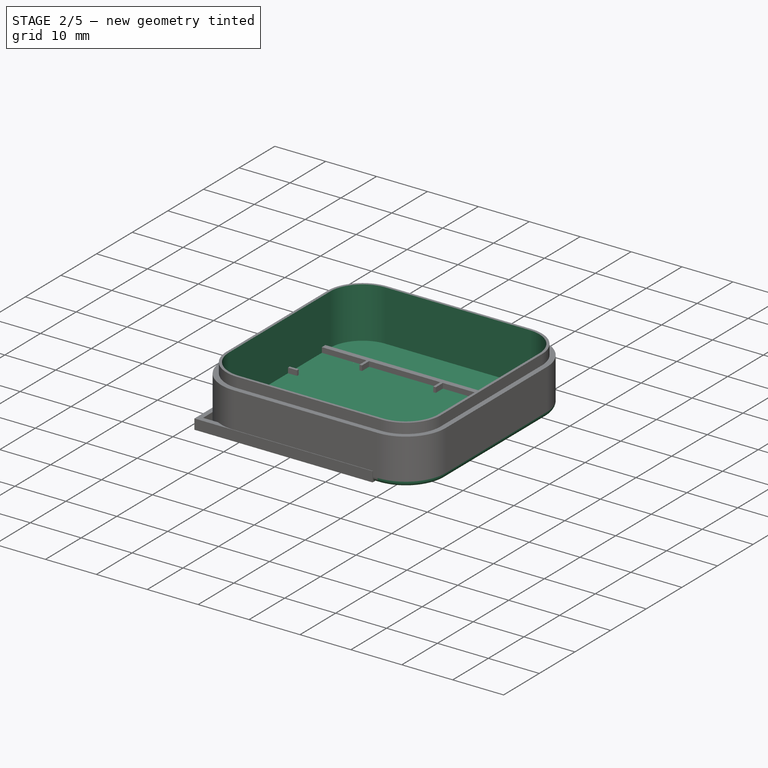
[diagram: stage 2 of 5 — iso view after this stage's code; geometry added in this stage tinted green]
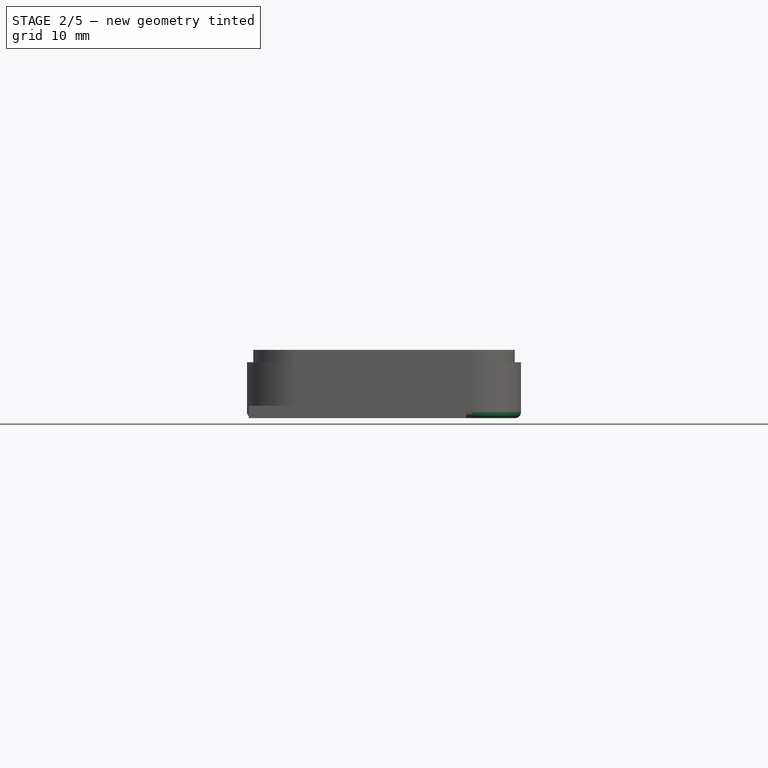
[diagram: stage 2 of 5 — front view after this stage's code; geometry added in this stage tinted green]
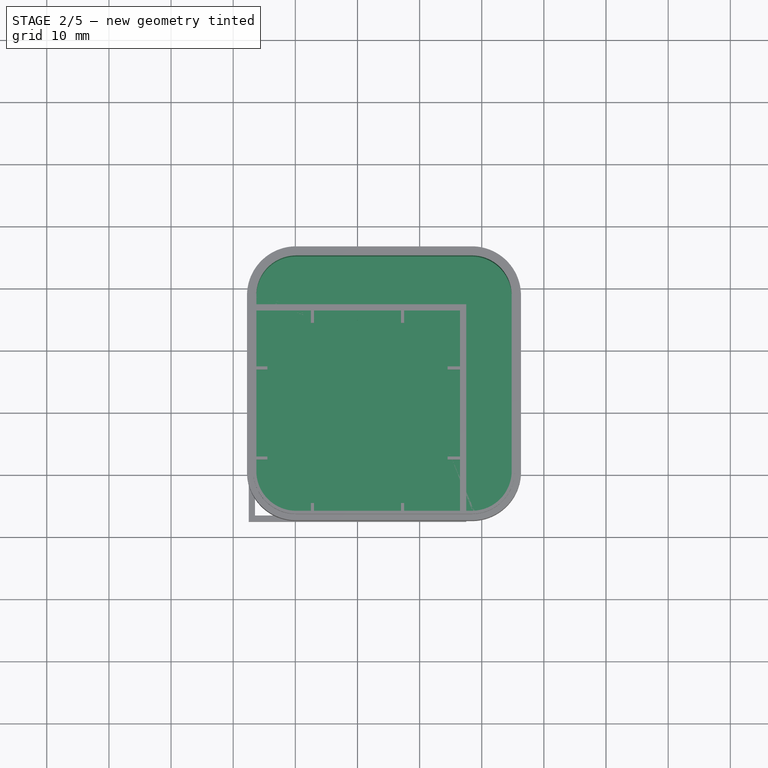
[diagram: stage 2 of 5 — top view after this stage's code; geometry added in this stage tinted green]
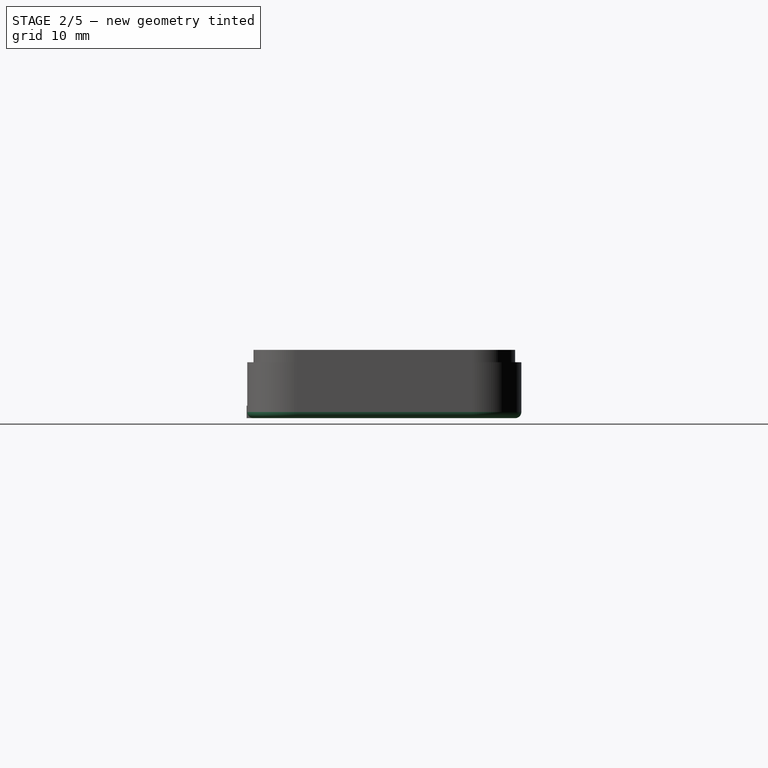
[diagram: stage 2 of 5 — right view after this stage's code; geometry added in this stage tinted green]
FEATURE [PartDesign::Body] Body004  label="Chip"
  AllowCompound = false
  Group = -> [Sketch022,Pad007]
  Origin = -> Origin004
  Placement = pos=(29,-19,2) rot=(0,0,1;0rad)
  Tip = -> Pad007
FEATURE [Sketcher::SketchObject] Sketch023
  ArcFitTolerance = 1e-06
  AttachmentOffset = pos=(0,0,1) rot=(0,0,1;0rad)
  AttachmentSupport = -> [XY_Plane005]
  FullyConstrained = false
  MakeInternals = false
  MapMode = 5
  Placement = pos=(0,0,1) rot=(0,0,1;0rad)
  sketch-geometry (10):
    g0: LineSegment StartX=-16.7796 StartY=18.7921 StartZ=0 EndX=-16.7796 EndY=-9.48962 EndZ=0
    g1: LineSegment StartX=-9.87213 StartY=-16.3971 StartZ=0 EndX=18.4096 EndY=-16.3971 EndZ=0
    g2: LineSegment StartX=25.3171 StartY=-9.48962 StartZ=0 EndX=25.3171 EndY=18.7921 EndZ=0
    g3: LineSegment StartX=18.4096 StartY=25.6996 StartZ=0 EndX=-9.87213 EndY=25.6996 EndZ=0
    g4: ArcOfCircle CenterX=-9.87213 CenterY=18.7921 CenterZ=0 NormalX=0 NormalY=0 NormalZ=1 AngleXU=0 Radius=6.90746 StartAngle=1.5708 EndAngle=3.14159
    g5: ArcOfCircle CenterX=-9.87213 CenterY=-9.48962 CenterZ=0 NormalX=0 NormalY=0 NormalZ=1 AngleXU=0 Radius=6.90746 StartAngle=3.14159 EndAngle=4.71239
    g6: ArcOfCircle CenterX=18.4096 CenterY=-9.48962 CenterZ=0 NormalX=0 NormalY=0 NormalZ=1 AngleXU=0 Radius=6.90746 StartAngle=4.71239 EndAngle=6.28319
    g7: ArcOfCircle CenterX=18.4096 CenterY=18.7921 CenterZ=0 NormalX=0 NormalY=0 NormalZ=1 AngleXU=0 Radius=6.90746 StartAngle=0 EndAngle=1.5708
    g8: GeomPoint [constr] X=-16.7796 Y=25.6996 Z=0
    g9: GeomPoint [constr] X=25.3171 Y=-16.3971 Z=0
  constraints (20):
    c: Tangent(g0,g4) = -1.5708
    c: Tangent(g0,g5) = -1.5708
    c: Tangent(g1,g5) = -1.5708
    c: Tangent(g1,g6) = -1.5708
    c: Tangent(g2,g6) = -1.5708
    c: Tangent(g2,g7) = -1.5708
    c: Tangent(g3,g7) = -1.5708
    c: Tangent(g3,g4) = -1.5708
    c: Vertical(g0)
    c: Vertical(g2)
    c: Horizontal(g1)
    c: Horizontal(g3)
    c: Equal(g4,g5)
    c: Equal(g5,g6)
    c: Equal(g6,g7)
    c: PointOnObject(g8,g0)
    c: PointOnObject(g8,g3)
    c: PointOnObject(g9,g1)
    c: PointOnObject(g9,g2)
    c: Equal(g0,g3)
FEATURE [Image::ImagePlane] IMG_3597
  XSize = 182.246
  YSize = 136.684
FEATURE [Image::ImagePlane] IMG_3598
  Placement = pos=(19,6,0) rot=(0,0,1;0rad)
  XSize = 184.164
  YSize = 138.123
FEATURE [Part::Offset2D] Offset2D
  Fill = false
  Intersection = false
  Join = 0
  Mode = 1
  SelfIntersection = false
  Source = -> Sketch023
  Value = 1
FEATURE [Sketcher::SketchObject] Sketch024
  ArcFitTolerance = 1e-06
  FullyConstrained = false
  MakeInternals = false
  sketch-geometry (8):
    g0: LineSegment StartX=-17.7796 StartY=18.7921 StartZ=0 EndX=-17.7796 EndY=-9.48962 EndZ=0
    g1: ArcOfCircle CenterX=-9.87213 CenterY=-9.48962 CenterZ=0 NormalX=0 NormalY=0 NormalZ=1 AngleXU=0 Radius=7.90746 StartAngle=3.14159 EndAngle=4.71239
    g2: LineSegment StartX=-9.87213 StartY=-17.3971 StartZ=0 EndX=18.4096 EndY=-17.3971 EndZ=0
    g3: ArcOfCircle CenterX=18.4096 CenterY=-9.48962 CenterZ=0 NormalX=0 NormalY=0 NormalZ=1 AngleXU=0 Radius=7.90746 StartAngle=4.71239 EndAngle=6.28319
    g4: LineSegment StartX=26.3171 StartY=-9.48962 StartZ=0 EndX=26.3171 EndY=18.7921 EndZ=0
    g5: ArcOfCircle CenterX=18.4096 CenterY=18.7921 CenterZ=0 NormalX=0 NormalY=0 NormalZ=1 AngleXU=0 Radius=7.90746 StartAngle=0 EndAngle=1.5708
    g6: LineSegment StartX=18.4096 StartY=26.6996 StartZ=0 EndX=-9.87213 EndY=26.6996 EndZ=0
    g7: ArcOfCircle CenterX=-9.87213 CenterY=18.7921 CenterZ=0 NormalX=0 NormalY=0 NormalZ=1 AngleXU=0 Radius=7.90746 StartAngle=1.5708 EndAngle=3.14159
  constraints (12):
    c: Vertical(g0)
    c: Coincident(g0,g1)
    c: Coincident(g1,g2)
    c: Horizontal(g2)
    c: Coincident(g2,g3)
    c: Coincident(g3,g4)
    c: Vertical(g4)
    c: Coincident(g4,g5)
    c: Coincident(g5,g6)
    c: Horizontal(g6)
    c: Coincident(g6,g7)
    c: Coincident(g7,g0)
FEATURE [Sketcher::SketchObject] Sketch025
  ArcFitTolerance = 1e-06
  AttachmentSupport = -> [XY_Plane005]
  ExternalGeometry = -> [Sketch023]
  FullyConstrained = false
  MakeInternals = false
  MapMode = 5
  sketch-geometry (16):
    g0: Circle CenterX=11.8349 CenterY=12.2175 CenterZ=0 NormalX=0 NormalY=0 NormalZ=1 AngleXU=0 Radius=4.275
    g1: Circle CenterX=-3.29745 CenterY=12.2175 CenterZ=0 NormalX=0 NormalY=0 NormalZ=1 AngleXU=0 Radius=4.275
    g2: Circle CenterX=-3.29745 CenterY=-2.91494 CenterZ=0 NormalX=0 NormalY=0 NormalZ=1 AngleXU=0 Radius=4.275
    g3: Circle CenterX=11.8349 CenterY=-2.91494 CenterZ=0 NormalX=0 NormalY=0 NormalZ=1 AngleXU=0 Radius=4.275
    g4: LineSegment [constr] StartX=-16.7796 StartY=18.7921 StartZ=0 EndX=-16.7796 EndY=25.6996 EndZ=0
    g5: LineSegment [constr] StartX=-9.87213 StartY=25.6996 StartZ=0 EndX=-16.7796 EndY=25.6996 EndZ=0
    g6: LineSegment [constr] StartX=18.4096 StartY=25.6996 StartZ=0 EndX=25.3171 EndY=25.6996 EndZ=0
    g7: LineSegment [constr] StartX=25.3171 StartY=18.7921 StartZ=0 EndX=25.3171 EndY=25.6996 EndZ=0
    g8: LineSegment [constr] StartX=18.4096 StartY=-16.3971 StartZ=0 EndX=25.3171 EndY=-16.3971 EndZ=0
    g9: LineSegment [constr] StartX=25.3171 StartY=-9.48962 StartZ=0 EndX=25.3171 EndY=-16.3971 EndZ=0
    g10: LineSegment [constr] StartX=-16.7796 StartY=-9.48962 StartZ=0 EndX=-16.7796 EndY=-16.3971 EndZ=0
    g11: LineSegment [constr] StartX=-9.87213 StartY=-16.3971 StartZ=0 EndX=-16.7796 EndY=-16.3971 EndZ=0
    g12: LineSegment [constr] StartX=-3.02999 StartY=7.95083 StartZ=0 EndX=-3.01694 EndY=1.35084 EndZ=0
    g13: LineSegment [constr] StartX=25.3171 StartY=25.6996 StartZ=0 EndX=-16.7796 EndY=-16.3971 EndZ=0
    g14: LineSegment [constr] StartX=-16.7796 StartY=25.6996 StartZ=0 EndX=25.3171 EndY=-16.3971 EndZ=0
    g15: LineSegment [constr] StartX=0.977545 StartY=12.2175 StartZ=0 EndX=7.55994 EndY=12.2175 EndZ=0
  constraints (40):
    c: Diameter(g2) = 8.55
    c: Vertical(g0,g3)
    c: Vertical(g1,g2)
    c: Horizontal(g1,g0)
    c: Horizontal(g2,g3)
    c: Vertical(g4)
    c: Coincident(g4,g-5)
    c: Coincident(g5,g4)
    c: Coincident(g6,g7)
    c: Coincident(g9,g8)
    c: Coincident(g10,g11)
    c: Equal(g2,g1)
    c: Equal(g1,g0)
    c: Equal(g0,g3)
    c: Horizontal(g5)
    c: Horizontal(g6)
    c: Coincident(g6,g-3)
    c: Vertical(g7)
    c: Coincident(g7,g-6)
    c: Coincident(g5,g-3)
    c: Vertical(g10)
    c: Horizontal(g11)
    c: Coincident(g10,g-5)
    c: Coincident(g11,g-4)
    c: Vertical(g9)
    c: Coincident(g9,g-6)
    c: Horizontal(g8)
    c: Coincident(g8,g-4)
    c: PointOnObject(g12,g1)
    c: PointOnObject(g12,g2)
    c: Distance(g12) = 6.6
    c: Coincident(g13,g6)
    c: Coincident(g13,g10)
    c: Coincident(g14,g4)
    c: Coincident(g14,g8)
    c: PointOnObject(g0,g13)
    c: PointOnObject(g1,g14)
    c: PointOnObject(g2,g13)
    c: PointOnObject(g15,g0)
    c: PointOnObject(g15,g1)
FEATURE [PartDesign::Pad] Pad008
  Direction = (0,0,1)
  Length = 3
  Length2 = 10
  Profile = -> Sketch024
  ReferenceAxis = -> Sketch024 [N_Axis]
  Suppressed = false
  Type = 0
FEATURE [PartDesign::Pocket] Pocket005
  BaseFeature = -> Pad008
  Direction = (0,0,-1)
  Length = 5
  Length2 = 5
  Profile = -> Sketch025
  ReferenceAxis = -> Sketch025 [N_Axis]
  Reversed = true
  Suppressed = false
  Type = 1
FEATURE [PartDesign::Pocket] Pocket006
  BaseFeature = -> Pocket005
  Direction = (0,0,-1)
  Length = 5
  Length2 = 5
  Profile = -> Sketch023
  ReferenceAxis = -> Sketch023 [N_Axis]
  Reversed = true
  Suppressed = false
  Type = 1
FEATURE [PartDesign::Fillet] Fillet002
  Base = -> Pocket006 [Edge11]
  BaseFeature = -> Pocket006
  Radius = 1
  SupportTransform = false
  Suppressed = false
  UseAllEdges = false
FEATURE [Sketcher::SketchObject] Sketch030
  ArcFitTolerance = 1e-06
  AttachmentSupport = -> [Pad010]
  FullyConstrained = false
  MakeInternals = false
  MapMode = 5
  Placement = pos=(0,0,11) rot=(0,0,1;0rad)
  sketch-geometry (8):
    g0: LineSegment StartX=-16.2796 StartY=18.7921 StartZ=0 EndX=-16.2796 EndY=-9.48962 EndZ=0
    g1: ArcOfCircle CenterX=-9.87213 CenterY=-9.48962 CenterZ=0 NormalX=0 NormalY=0 NormalZ=1 AngleXU=0 Radius=6.40746 StartAngle=3.14159 EndAngle=4.71239
    g2: LineSegment StartX=-9.87213 StartY=-15.8971 StartZ=0 EndX=18.4096 EndY=-15.8971 EndZ=0
    g3: ArcOfCircle CenterX=18.4096 CenterY=-9.48962 CenterZ=0 NormalX=0 NormalY=0 NormalZ=1 AngleXU=0 Radius=6.40746 StartAngle=4.71239 EndAngle=6.28319
    g4: LineSegment StartX=24.8171 StartY=-9.48962 StartZ=0 EndX=24.8171 EndY=18.7921 EndZ=0
    g5: ArcOfCircle CenterX=18.4096 CenterY=18.7921 CenterZ=0 NormalX=0 NormalY=0 NormalZ=1 AngleXU=0 Radius=6.40746 StartAngle=0 EndAngle=1.5708
    g6: LineSegment StartX=18.4096 StartY=25.1996 StartZ=0 EndX=-9.87213 EndY=25.1996 EndZ=0
    g7: ArcOfCircle CenterX=-9.87213 CenterY=18.7921 CenterZ=0 NormalX=0 NormalY=0 NormalZ=1 AngleXU=0 Radius=6.40746 StartAngle=1.5708 EndAngle=3.14159
  constraints (12):
    c: Vertical(g0)
    c: Coincident(g0,g1)
    c: Coincident(g1,g2)
    c: Horizontal(g2)
    c: Coincident(g2,g3)
    c: Coincident(g3,g4)
    c: Vertical(g4)
    c: Coincident(g4,g5)
    c: Coincident(g5,g6)
    c: Horizontal(g6)
    c: Coincident(g6,g7)
    c: Coincident(g7,g0)
FEATURE [PartDesign::Pocket] Pocket009
  BaseFeature = -> Pad010
  Direction = (0,0,-1)
  Length = 10
  Length2 = 5
  Profile = -> Sketch030
  ReferenceAxis = -> Sketch030 [N_Axis]
  Suppressed = false
  Type = 0
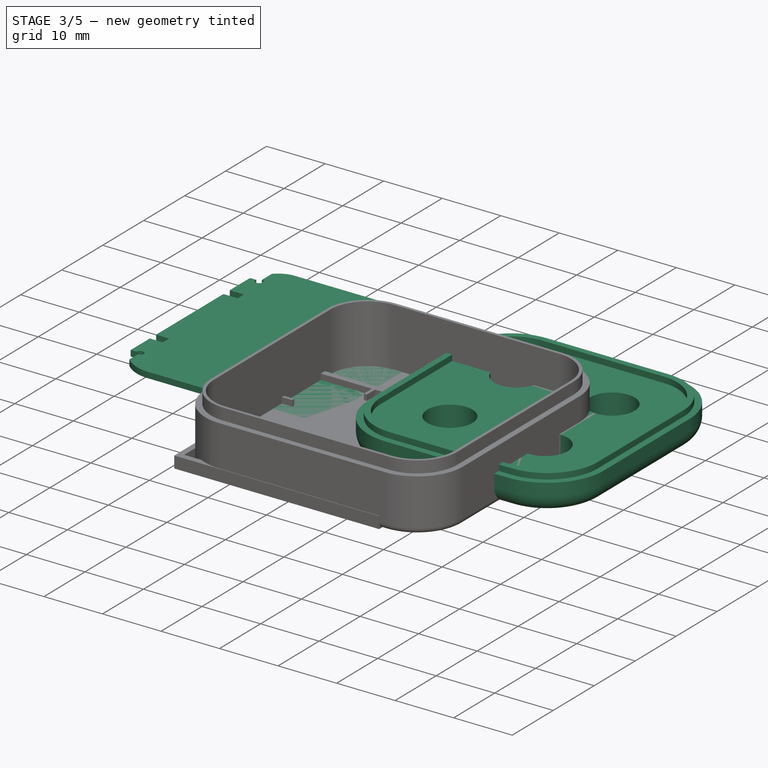
[diagram: stage 3 of 5 — iso view after this stage's code; geometry added in this stage tinted green]
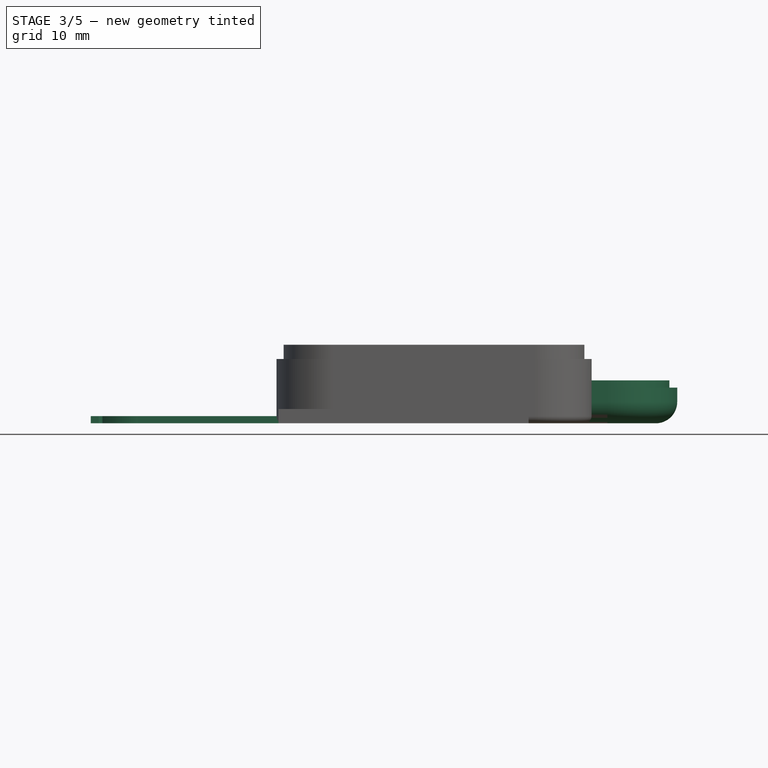
[diagram: stage 3 of 5 — front view after this stage's code; geometry added in this stage tinted green]
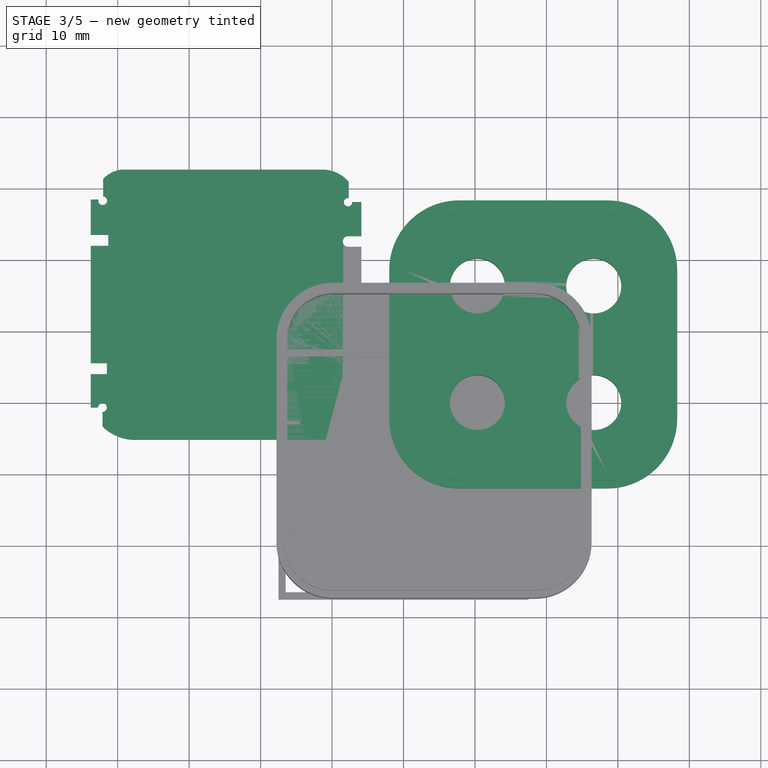
[diagram: stage 3 of 5 — top view after this stage's code; geometry added in this stage tinted green]
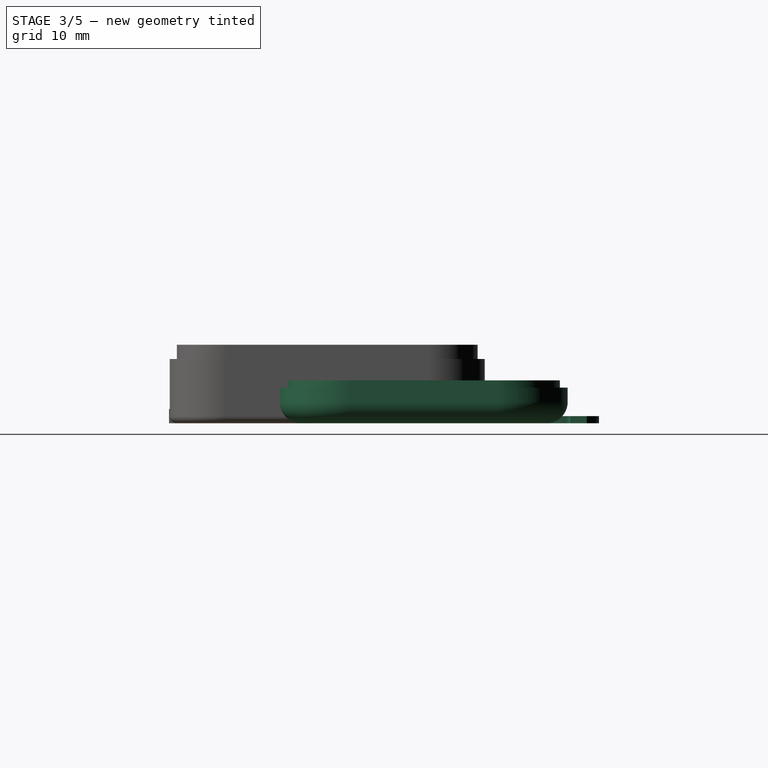
[diagram: stage 3 of 5 — right view after this stage's code; geometry added in this stage tinted green]
FEATURE [Sketcher::SketchObject] Sketch015
  ArcFitTolerance = 1e-06
  FullyConstrained = false
  MakeInternals = false
  Placement = pos=(0,0,12) rot=(0,0,1;0rad)
  sketch-geometry (8):
    g0: LineSegment StartX=7.77 StartY=-1 StartZ=0 EndX=28.53 EndY=-1 EndZ=0
    g1: ArcOfCircle CenterX=28.53 CenterY=7.77 CenterZ=0 NormalX=0 NormalY=0 NormalZ=1 AngleXU=0 Radius=8.77 StartAngle=4.71239 EndAngle=6.28319
    g2: LineSegment StartX=37.3 StartY=7.77 StartZ=0 EndX=37.3 EndY=28.53 EndZ=0
    g3: ArcOfCircle CenterX=28.53 CenterY=28.53 CenterZ=0 NormalX=0 NormalY=0 NormalZ=1 AngleXU=0 Radius=8.77 StartAngle=0 EndAngle=1.5708
    g4: LineSegment StartX=28.53 StartY=37.3 StartZ=0 EndX=7.76913 EndY=37.3 EndZ=0
    g5: ArcOfCircle CenterX=7.76913 CenterY=28.5309 CenterZ=0 NormalX=0 NormalY=0 NormalZ=1 AngleXU=0 Radius=8.76913 StartAngle=1.5708 EndAngle=3.14159
    g6: LineSegment StartX=-1 StartY=28.5309 StartZ=0 EndX=-1 EndY=7.77 EndZ=0
    g7: ArcOfCircle CenterX=7.77 CenterY=7.77 CenterZ=0 NormalX=0 NormalY=0 NormalZ=1 AngleXU=0 Radius=8.77 StartAngle=3.14159 EndAngle=4.71239
  constraints (12):
    c: Horizontal(g0)
    c: Coincident(g0,g1)
    c: Coincident(g1,g2)
    c: Vertical(g2)
    c: Coincident(g2,g3)
    c: Coincident(g3,g4)
    c: Horizontal(g4)
    c: Coincident(g4,g5)
    c: Coincident(g5,g6)
    c: Vertical(g6)
    c: Coincident(g6,g7)
    c: Coincident(g7,g0)
FEATURE [PartDesign::Body] Body002  label="TapaV2"
  AllowCompound = false
  Group = -> [Sketch012,Sketch013,Pad003,Sketch,Pad004,Sketch014,Pocket002,Sketch015]
  Origin = -> Origin002
  Tip = -> Pocket002
FEATURE [Sketcher::SketchObject] Sketch017
  ArcFitTolerance = 1e-06
  FullyConstrained = false
  MakeInternals = false
  sketch-geometry (8):
    g0: LineSegment StartX=7.77 StartY=-2 StartZ=0 EndX=28.53 EndY=-2 EndZ=0
    g1: ArcOfCircle CenterX=28.53 CenterY=7.77 CenterZ=0 NormalX=0 NormalY=0 NormalZ=1 AngleXU=0 Radius=9.77 StartAngle=4.71239 EndAngle=6.28319
    g2: LineSegment StartX=38.3 StartY=7.77 StartZ=0 EndX=38.3 EndY=28.53 EndZ=0
    g3: ArcOfCircle CenterX=28.53 CenterY=28.53 CenterZ=0 NormalX=0 NormalY=0 NormalZ=1 AngleXU=0 Radius=9.77 StartAngle=0 EndAngle=1.5708
    g4: LineSegment StartX=28.53 StartY=38.3 StartZ=0 EndX=7.76913 EndY=38.3 EndZ=0
    g5: ArcOfCircle CenterX=7.76913 CenterY=28.5309 CenterZ=0 NormalX=0 NormalY=0 NormalZ=1 AngleXU=0 Radius=9.76913 StartAngle=1.5708 EndAngle=3.14159
    g6: LineSegment StartX=-2 StartY=28.5309 StartZ=0 EndX=-2 EndY=7.77 EndZ=0
    g7: ArcOfCircle CenterX=7.77 CenterY=7.77 CenterZ=0 NormalX=0 NormalY=0 NormalZ=1 AngleXU=0 Radius=9.77 StartAngle=3.14159 EndAngle=4.71239
  constraints (12):
    c: Horizontal(g0)
    c: Coincident(g0,g1)
    c: Coincident(g1,g2)
    c: Vertical(g2)
    c: Coincident(g2,g3)
    c: Coincident(g3,g4)
    c: Horizontal(g4)
    c: Coincident(g4,g5)
    c: Coincident(g5,g6)
    c: Vertical(g6)
    c: Coincident(g6,g7)
    c: Coincident(g7,g0)
FEATURE [PartDesign::Pad] Pad005
  Direction = (0,0,1)
  Length = 5
  Length2 = 10
  Profile = -> Sketch017
  ReferenceAxis = -> Sketch017 [N_Axis]
  Suppressed = false
  Type = 0
FEATURE [Sketcher::SketchObject] Sketch016
  ArcFitTolerance = 1e-06
  AttachmentSupport = -> [Pad005]
  FullyConstrained = false
  MakeInternals = false
  MapMode = 5
  Placement = pos=(0,0,5) rot=(0,0,1;0rad)
  sketch-geometry (8):
    g0: LineSegment StartX=7.77 StartY=-1 StartZ=0 EndX=28.53 EndY=-1 EndZ=0
    g1: ArcOfCircle CenterX=28.53 CenterY=7.77 CenterZ=0 NormalX=0 NormalY=0 NormalZ=1 AngleXU=0 Radius=8.77 StartAngle=4.71239 EndAngle=6.28319
    g2: LineSegment StartX=37.3 StartY=7.77 StartZ=0 EndX=37.3 EndY=28.53 EndZ=0
    g3: ArcOfCircle CenterX=28.53 CenterY=28.53 CenterZ=0 NormalX=0 NormalY=0 NormalZ=1 AngleXU=0 Radius=8.77 StartAngle=0 EndAngle=1.5708
    g4: LineSegment StartX=28.53 StartY=37.3 StartZ=0 EndX=7.76913 EndY=37.3 EndZ=0
    g5: ArcOfCircle CenterX=7.76913 CenterY=28.5309 CenterZ=0 NormalX=0 NormalY=0 NormalZ=1 AngleXU=0 Radius=8.76913 StartAngle=1.5708 EndAngle=3.14159
    g6: LineSegment StartX=-1 StartY=28.5309 StartZ=0 EndX=-1 EndY=7.77 EndZ=0
    g7: ArcOfCircle CenterX=7.77 CenterY=7.77 CenterZ=0 NormalX=0 NormalY=0 NormalZ=1 AngleXU=0 Radius=8.77 StartAngle=3.14159 EndAngle=4.71239
  constraints (12):
    c: Horizontal(g0)
    c: Coincident(g0,g1)
    c: Coincident(g1,g2)
    c: Vertical(g2)
    c: Coincident(g2,g3)
    c: Coincident(g3,g4)
    c: Horizontal(g4)
    c: Coincident(g4,g5)
    c: Coincident(g5,g6)
    c: Vertical(g6)
    c: Coincident(g6,g7)
    c: Coincident(g7,g0)
FEATURE [Part::Offset2D] Offset2D003
  Fill = true
  Intersection = false
  Join = 0
  Mode = 1
  SelfIntersection = false
  Source = -> Sketch016
  Value = -0.1
FEATURE [Sketcher::SketchObject] Sketch018
  ArcFitTolerance = 1e-06
  FullyConstrained = false
  MakeInternals = false
  Placement = pos=(0,0,1) rot=(0,0,1;0rad)
  sketch-geometry (8):
    g0: LineSegment StartX=7.77 StartY=-0.9 StartZ=0 EndX=28.53 EndY=-0.9 EndZ=0
    g1: ArcOfCircle CenterX=7.77 CenterY=7.77 CenterZ=0 NormalX=0 NormalY=0 NormalZ=1 AngleXU=0 Radius=8.67 StartAngle=3.14159 EndAngle=4.71239
    g2: LineSegment StartX=-0.9 StartY=28.5309 StartZ=0 EndX=-0.9 EndY=7.77 EndZ=0
    g3: ArcOfCircle CenterX=7.76913 CenterY=28.5309 CenterZ=0 NormalX=0 NormalY=0 NormalZ=1 AngleXU=0 Radius=8.66913 StartAngle=1.5708 EndAngle=3.14159
    g4: LineSegment StartX=28.53 StartY=37.2 StartZ=0 EndX=7.76913 EndY=37.2 EndZ=0
    g5: ArcOfCircle CenterX=28.53 CenterY=28.53 CenterZ=0 NormalX=0 NormalY=0 NormalZ=1 AngleXU=0 Radius=8.67 StartAngle=0 EndAngle=1.5708
    g6: LineSegment StartX=37.2 StartY=7.77 StartZ=0 EndX=37.2 EndY=28.53 EndZ=0
    g7: ArcOfCircle CenterX=28.53 CenterY=7.77 CenterZ=0 NormalX=0 NormalY=0 NormalZ=1 AngleXU=0 Radius=8.67 StartAngle=4.71239 EndAngle=6.28319
  constraints (12):
    c: Horizontal(g0)
    c: Coincident(g0,g1)
    c: Coincident(g1,g2)
    c: Vertical(g2)
    c: Coincident(g2,g3)
    c: Coincident(g3,g4)
    c: Horizontal(g4)
    c: Coincident(g4,g5)
    c: Coincident(g5,g6)
    c: Vertical(g6)
    c: Coincident(g6,g7)
    c: Coincident(g7,g0)
FEATURE [Part::Offset2D] Offset2D004
  Fill = true
  Intersection = false
  Join = 0
  Mode = 1
  SelfIntersection = false
  Source = -> Sketch018
  Value = -1
FEATURE [Sketcher::SketchObject] Sketch019
  ArcFitTolerance = 1e-06
  AttachmentSupport = -> [Pad005]
  FullyConstrained = false
  MakeInternals = false
  MapMode = 5
  Placement = pos=(0,0,5) rot=(0,0,1;0rad)
  sketch-geometry (16):
    g0: LineSegment StartX=7.77 StartY=-0.9 StartZ=0 EndX=28.53 EndY=-0.9 EndZ=0
    g1: ArcOfCircle CenterX=28.53 CenterY=7.77 CenterZ=0 NormalX=0 NormalY=0 NormalZ=1 AngleXU=0 Radius=8.67 StartAngle=4.71239 EndAngle=6.28319
    g2: LineSegment StartX=37.2 StartY=7.77 StartZ=0 EndX=37.2 EndY=28.53 EndZ=0
    g3: ArcOfCircle CenterX=28.53 CenterY=28.53 CenterZ=0 NormalX=0 NormalY=0 NormalZ=1 AngleXU=0 Radius=8.67 StartAngle=0 EndAngle=1.5708
    g4: LineSegment StartX=28.53 StartY=37.2 StartZ=0 EndX=7.76913 EndY=37.2 EndZ=0
    g5: ArcOfCircle CenterX=7.76913 CenterY=28.5309 CenterZ=0 NormalX=0 NormalY=0 NormalZ=1 AngleXU=0 Radius=8.66913 StartAngle=1.5708 EndAngle=3.14159
    g6: LineSegment StartX=-0.9 StartY=28.5309 StartZ=0 EndX=-0.9 EndY=7.77 EndZ=0
    g7: ArcOfCircle CenterX=7.77 CenterY=7.77 CenterZ=0 NormalX=0 NormalY=0 NormalZ=1 AngleXU=0 Radius=8.67 StartAngle=3.14159 EndAngle=4.71239
    g8: LineSegment StartX=7.77 StartY=0.1 StartZ=0 EndX=28.53 EndY=0.1 EndZ=0
    g9: ArcOfCircle CenterX=7.77 CenterY=7.77 CenterZ=0 NormalX=0 NormalY=0 NormalZ=1 AngleXU=0 Radius=7.67 StartAngle=3.14159 EndAngle=4.71239
    g10: LineSegment StartX=0.1 StartY=28.5309 StartZ=0 EndX=0.1 EndY=7.77 EndZ=0
    g11: ArcOfCircle CenterX=7.76913 CenterY=28.5309 CenterZ=0 NormalX=0 NormalY=0 NormalZ=1 AngleXU=0 Radius=7.66913 StartAngle=1.5708 EndAngle=3.14159
    g12: LineSegment StartX=28.53 StartY=36.2 StartZ=0 EndX=7.76913 EndY=36.2 EndZ=0
    g13: ArcOfCircle CenterX=28.53 CenterY=28.53 CenterZ=0 NormalX=0 NormalY=0 NormalZ=1 AngleXU=0 Radius=7.67 StartAngle=0 EndAngle=1.5708
    g14: LineSegment StartX=36.2 StartY=7.77 StartZ=0 EndX=36.2 EndY=28.53 EndZ=0
    g15: ArcOfCircle CenterX=28.53 CenterY=7.77 CenterZ=0 NormalX=0 NormalY=0 NormalZ=1 AngleXU=0 Radius=7.67 StartAngle=4.71239 EndAngle=6.28319
  constraints (24):
    c: Horizontal(g0)
    c: Coincident(g0,g1)
    c: Coincident(g1,g2)
    c: Vertical(g2)
    c: Coincident(g2,g3)
    c: Coincident(g3,g4)
    c: Horizontal(g4)
    c: Coincident(g4,g5)
    c: Coincident(g5,g6)
    c: Vertical(g6)
    c: Coincident(g6,g7)
    c: Coincident(g7,g0)
    c: Horizontal(g8)
    c: Coincident(g8,g9)
    c: Coincident(g9,g10)
    c: Vertical(g10)
    c: Coincident(g10,g11)
    c: Coincident(g11,g12)
    c: Horizontal(g12)
    c: Coincident(g12,g13)
    c: Coincident(g13,g14)
    c: Vertical(g14)
    c: Coincident(g14,g15)
    c: Coincident(g15,g8)
FEATURE [PartDesign::Pad] Pad006
  BaseFeature = -> Pad005
  Direction = (0,0,1)
  Length = 1
  Length2 = 10
  Profile = -> Sketch019
  ReferenceAxis = -> Sketch019 [N_Axis]
  Suppressed = false
  Type = 0
FEATURE [PartDesign::Fillet] Fillet
  Base = -> Pad006 [Face4]
  BaseFeature = -> Pad006
  Radius = 3
  SupportTransform = false
  Suppressed = false
  UseAllEdges = false
FEATURE [Sketcher::SketchObject] Sketch020
  ArcFitTolerance = 1e-06
  AttachmentSupport = -> [Fillet]
  ExternalGeometry = -> [Fillet]
  FullyConstrained = false
  MakeInternals = false
  MapMode = 5
  Placement = pos=(0,0,0) rot=(1,0,0;3.14159rad)
  sketch-geometry (21):
    g0: LineSegment [constr] StartX=38.3 StartY=-28.5309 StartZ=0 EndX=38.3 EndY=-28.53 EndZ=0
    g1: LineSegment [constr] StartX=38.3324 StartY=-7.77 StartZ=0 EndX=38.3324 EndY=1.90501 EndZ=0
    g2: LineSegment [constr] StartX=38.3324 StartY=-7.77 StartZ=0 EndX=38.3324 EndY=2 EndZ=0
    g3: LineSegment [constr] StartX=38.3 StartY=-28.53 StartZ=0 EndX=38.3 EndY=-28.5309 EndZ=0
    g4: LineSegment [constr] StartX=-2 StartY=-28.5309 StartZ=0 EndX=-2 EndY=-28.5309 EndZ=0
    g5: LineSegment [constr] StartX=7.77 StartY=-38.3 StartZ=0 EndX=7.76913 EndY=-38.3 EndZ=0
    g6: LineSegment [constr] StartX=-1.65797 StartY=2.13987 StartZ=0 EndX=-1.65797 EndY=-38.4291 EndZ=0
    g7: LineSegment [constr] StartX=-1.65797 StartY=-38.4291 StartZ=0 EndX=38.3726 EndY=-38.4291 EndZ=0
    g8: LineSegment [constr] StartX=38.3726 StartY=-38.4291 StartZ=0 EndX=38.3726 EndY=2.13987 EndZ=0
    g9: LineSegment [constr] StartX=38.3726 StartY=2.13987 StartZ=0 EndX=-1.65797 EndY=2.13987 EndZ=0
    g10: LineSegment [constr] StartX=-1.65797 StartY=2.13987 StartZ=0 EndX=38.3726 EndY=-38.4291 EndZ=0
    g11: LineSegment [constr] StartX=38.3324 StartY=1.90501 StartZ=0 EndX=-1.65797 EndY=-38.4291 EndZ=0
    g12: Circle CenterX=10.3371 CenterY=-10.0165 CenterZ=0 NormalX=0 NormalY=0 NormalZ=1 AngleXU=0 Radius=3.85
    g13: Circle CenterX=10.3371 CenterY=-26.331 CenterZ=0 NormalX=0 NormalY=0 NormalZ=1 AngleXU=0 Radius=3.85
    g14: LineSegment [constr] StartX=10.573 StartY=-6.17373 StartZ=0 EndX=10.573 EndY=-30.1737 EndZ=0
    g15: LineSegment [constr] StartX=-8.12789 StartY=9.20616 StartZ=0 EndX=-8.12789 EndY=-41.5001 EndZ=0
    g16: LineSegment [constr] StartX=-8.12789 StartY=-41.5001 StartZ=0 EndX=18.4764 EndY=-41.5001 EndZ=0
    g17: LineSegment [constr] StartX=18.4764 StartY=-41.5001 StartZ=0 EndX=18.4764 EndY=9.20616 EndZ=0
    g18: LineSegment [constr] StartX=18.4764 StartY=9.20616 StartZ=0 EndX=-8.12789 EndY=9.20616 EndZ=0
    g19: Circle CenterX=26.6158 CenterY=-10.0165 CenterZ=0 NormalX=0 NormalY=0 NormalZ=1 AngleXU=0 Radius=3.85
    g20: Circle CenterX=26.6158 CenterY=-26.331 CenterZ=0 NormalX=0 NormalY=0 NormalZ=1 AngleXU=0 Radius=3.85
  constraints (41):
    c: Vertical(g0)
    c: PointOnObject(g0,g-4)
    c: Vertical(g2)
    c: Coincident(g3,g0)
    c: Vertical(g3)
    c: PointOnObject(g2,g1)
    c: PointOnObject(g4,g-5)
    c: PointOnObject(g5,g-6)
    c: PointOnObject(g3,g0)
    c: Coincident(g6,g7)
    c: Coincident(g7,g8)
    c: Coincident(g8,g9)
    c: Coincident(g9,g6)
    c: Vertical(g6)
    c: Vertical(g8)
    c: Horizontal(g7)
    c: Horizontal(g9)
    c: PointOnObject(g2,g1)
    c: Coincident(g10,g6)
    c: Coincident(g10,g7)
    c: Coincident(g11,g1)
    c: Coincident(g11,g6)
    c: Diameter(g12) = 7.7
    c: PointOnObject(g12,g10)
    c: Diameter(g13) = 7.7
    c: PointOnObject(g13,g11)
    c: Vertical(g12,g13)
    c: PointOnObject(g14,g12)
    c: PointOnObject(g14,g13)
    c: Vertical(g14)
    c: Distance(g14) = 24
    c: Coincident(g15,g16)
    c: Coincident(g16,g17)
    c: Coincident(g17,g18)
    c: Coincident(g18,g15)
    c: Vertical(g15)
    c: Vertical(g17)
    c: Horizontal(g16)
    c: Horizontal(g18)
    c: Diameter(g19) = 7.7
    c: Diameter(g20) = 7.7
FEATURE [PartDesign::Pocket] Pocket003
  BaseFeature = -> Fillet
  Direction = (0,0,1)
  Length = 5
  Length2 = 5
  Profile = -> Sketch020
  ReferenceAxis = -> Sketch020 [N_Axis]
  Suppressed = false
  Type = 0
FEATURE [PartDesign::Body] Body003  label="TapaV3"
  AllowCompound = false
  Group = -> [Sketch017,Sketch016,Pad005,Sketch019,Pad006,Fillet,Sketch020,Pocket003,Fillet001,Sketch021,Pocket004]
  Origin = -> Origin003
  Tip = -> Pocket004
FEATURE [Image::ImagePlane] IMG_3519
  XSize = 115.589
  YSize = 154.118
FEATURE [Sketcher::SketchObject] Sketch022
  ArcFitTolerance = 1e-06
  AttachmentSupport = -> [XY_Plane004]
  FullyConstrained = false
  MakeInternals = false
  MapMode = 5
  sketch-geometry (36):
    g0: ArcOfCircle CenterX=-7.75329 CenterY=32.6278 CenterZ=0 NormalX=0 NormalY=0 NormalZ=1 AngleXU=0 Radius=0.745564 StartAngle=1.66961 EndAngle=4.67807
    g1: LineSegment StartX=-5.89907 StartY=15.4976 StartZ=0 EndX=-8.49809 EndY=15.4976 EndZ=0
    g2: LineSegment StartX=-8.49809 StartY=15.4976 StartZ=0 EndX=-8.49809 EndY=13.9146 EndZ=0
    g3: LineSegment StartX=-8.49809 StartY=13.9146 StartZ=0 EndX=-5.89907 EndY=13.9146 EndZ=0
    g4: LineSegment StartX=-43.7648 StartY=32.0142 StartZ=0 EndX=-41.3266 EndY=32.0142 EndZ=0
    g5: LineSegment StartX=-41.3266 StartY=32.0142 StartZ=0 EndX=-41.3266 EndY=33.5492 EndZ=0
    g6: LineSegment StartX=-41.3266 StartY=33.5492 StartZ=0 EndX=-43.7648 EndY=33.5492 EndZ=0
    g7: LineSegment StartX=-43.7648 StartY=14.054 StartZ=0 EndX=-41.5178 EndY=14.054 EndZ=0
    g8: LineSegment StartX=-41.5178 StartY=14.054 StartZ=0 EndX=-41.5178 EndY=15.589 EndZ=0
    g9: LineSegment StartX=-41.5178 StartY=15.589 StartZ=0 EndX=-43.7648 EndY=15.589 EndZ=0
    g10: LineSegment StartX=-42.7478 StartY=9.38222 StartZ=0 EndX=-43.7648 EndY=9.38222 EndZ=0
    g11: ArcOfCircle CenterX=-42.136 CenterY=9.38222 CenterZ=0 NormalX=0 NormalY=0 NormalZ=1 AngleXU=0 Radius=0.611851 StartAngle=4.71239 EndAngle=9.42478
    g12: ArcOfCircle CenterX=-37.5433 CenterY=11.3763 CenterZ=0 NormalX=0 NormalY=0 NormalZ=1 AngleXU=0 Radius=6.52561 StartAngle=3.93167 EndAngle=4.77314
    g13: LineSegment StartX=-5.89907 StartY=9.38863 StartZ=0 EndX=-7.09462 EndY=9.38863 EndZ=0
    g14: ArcOfCircle CenterX=-7.61606 CenterY=9.18547 CenterZ=0 NormalX=0 NormalY=0 NormalZ=1 AngleXU=0 Radius=0.559622 StartAngle=0.371532 EndAngle=5.04448
    g15: ArcOfCircle CenterX=-10.757 CenterY=9.49183 CenterZ=0 NormalX=0 NormalY=0 NormalZ=1 AngleXU=0 Radius=4.63135 StartAngle=4.68148 EndAngle=5.51273
    g16: LineSegment StartX=-7.18957 StartY=38.1478 StartZ=0 EndX=-5.89907 EndY=38.1478 EndZ=0
    g17: ArcOfCircle CenterX=-7.7718 CenterY=38.1217 CenterZ=0 NormalX=0 NormalY=0 NormalZ=1 AngleXU=0 Radius=0.582812 StartAngle=1.39094 EndAngle=6.32792
    g18: ArcOfCircle CenterX=-11.3622 CenterY=37.866 CenterZ=0 NormalX=0 NormalY=0 NormalZ=1 AngleXU=0 Radius=4.82075 StartAngle=0.697579 EndAngle=1.57755
    g19: LineSegment StartX=-43.7648 StartY=38.4984 StartZ=0 EndX=-42.6882 EndY=38.4984 EndZ=0
    g20: ArcOfCircle CenterX=-42.0985 CenterY=38.3323 CenterZ=0 NormalX=0 NormalY=0 NormalZ=1 AngleXU=0 Radius=0.612631 StartAngle=2.86711 EndAngle=7.76351
    g21: ArcOfCircle CenterX=-38.956 CenterY=38.4832 CenterZ=0 NormalX=0 NormalY=0 NormalZ=1 AngleXU=0 Radius=4.2311 StartAngle=1.68522 EndAngle=2.38858
    g22: LineSegment StartX=-43.7648 StartY=15.589 StartZ=0 EndX=-43.7648 EndY=32.0142 EndZ=0
    g23: LineSegment StartX=-43.7648 StartY=33.5492 StartZ=0 EndX=-43.7648 EndY=38.4984 EndZ=0
    g24: LineSegment StartX=-39.4391 StartY=42.6867 StartZ=0 EndX=-11.3947 EndY=42.6867 EndZ=0
    g25: LineSegment StartX=-42.0432 StartY=38.9424 StartZ=0 EndX=-42.0432 EndY=41.3767 EndZ=0
    g26: LineSegment StartX=-7.66755 StartY=40.9627 StartZ=0 EndX=-7.66755 EndY=38.6951 EndZ=0
    g27: LineSegment StartX=-5.89907 StartY=38.1478 StartZ=0 EndX=-5.89907 EndY=33.3697 EndZ=0
    g28: LineSegment StartX=-5.89907 StartY=31.8827 StartZ=0 EndX=-5.89907 EndY=15.4976 EndZ=0
    g29: LineSegment StartX=-7.77888 StartY=31.8827 StartZ=0 EndX=-5.89907 EndY=31.8827 EndZ=0
    g30: LineSegment StartX=-7.82685 StartY=33.3697 StartZ=0 EndX=-5.89907 EndY=33.3697 EndZ=0
    g31: LineSegment StartX=-5.89907 StartY=13.9146 StartZ=0 EndX=-5.89907 EndY=9.38863 EndZ=0
    g32: LineSegment StartX=-10.9001 StartY=4.86269 StartZ=0 EndX=-37.1472 EndY=4.86269 EndZ=0
    g33: LineSegment StartX=-7.43361 StartY=8.65642 StartZ=0 EndX=-7.43361 EndY=6.26627 EndZ=0
    g34: LineSegment StartX=-42.136 StartY=8.77037 StartZ=0 EndX=-42.136 EndY=6.74042 EndZ=0
    g35: LineSegment StartX=-43.7648 StartY=14.054 StartZ=0 EndX=-43.7648 EndY=9.38222 EndZ=0
  constraints (63):
    c: Coincident(g1,g2)
    c: Coincident(g2,g3)
    c: Horizontal(g1)
    c: Horizontal(g3)
    c: Vertical(g2)
    c: Coincident(g4,g5)
    c: Coincident(g5,g6)
    c: Vertical(g5)
    c: Horizontal(g4)
    c: Horizontal(g6)
    c: Coincident(g7,g8)
    c: Coincident(g8,g9)
    c: Vertical(g8)
    c: Horizontal(g7)
    c: Horizontal(g9)
    c: Horizontal(g10)
    c: Coincident(g10,g11)
    c: Horizontal(g13)
    c: Coincident(g14,g13)
    c: Horizontal(g16)
    c: Coincident(g16,g17)
    c: Horizontal(g19)
    c: Coincident(g20,g19)
    c: Coincident(g22,g9)
    c: Coincident(g22,g4)
    c: Vertical(g22)
    c: Coincident(g23,g6)
    c: Coincident(g23,g19)
    c: Vertical(g23)
    c: Coincident(g24,g21)
    c: Coincident(g24,g18)
    c: Horizontal(g24)
    c: Coincident(g25,g20)
    c: Coincident(g25,g21)
    c: Vertical(g25)
    c: Coincident(g26,g18)
    c: Coincident(g26,g17)
    c: Vertical(g26)
    c: Coincident(g27,g16)
    c: Vertical(g27)
    c: Coincident(g28,g1)
    c: Vertical(g28)
    c: Coincident(g29,g0)
    c: Coincident(g29,g28)
    c: Horizontal(g29)
    c: Coincident(g30,g0)
    c: Coincident(g30,g27)
    c: Horizontal(g30)
    c: Coincident(g31,g3)
    c: Coincident(g31,g13)
    c: Vertical(g31)
    c: Coincident(g32,g15)
    c: Coincident(g32,g12)
    c: Horizontal(g32)
    c: Coincident(g33,g14)
    c: Coincident(g33,g15)
    c: Vertical(g33)
    c: Coincident(g34,g11)
    c: Coincident(g34,g12)
    c: Vertical(g34)
    c: Coincident(g35,g7)
    c: Coincident(g35,g10)
    c: Vertical(g35)
FEATURE [PartDesign::Pad] Pad007
  Direction = (0,0,1)
  Length = 1
  Length2 = 10
  Profile = -> Sketch022
  ReferenceAxis = -> Sketch022 [N_Axis]
  Suppressed = false
  Type = 0
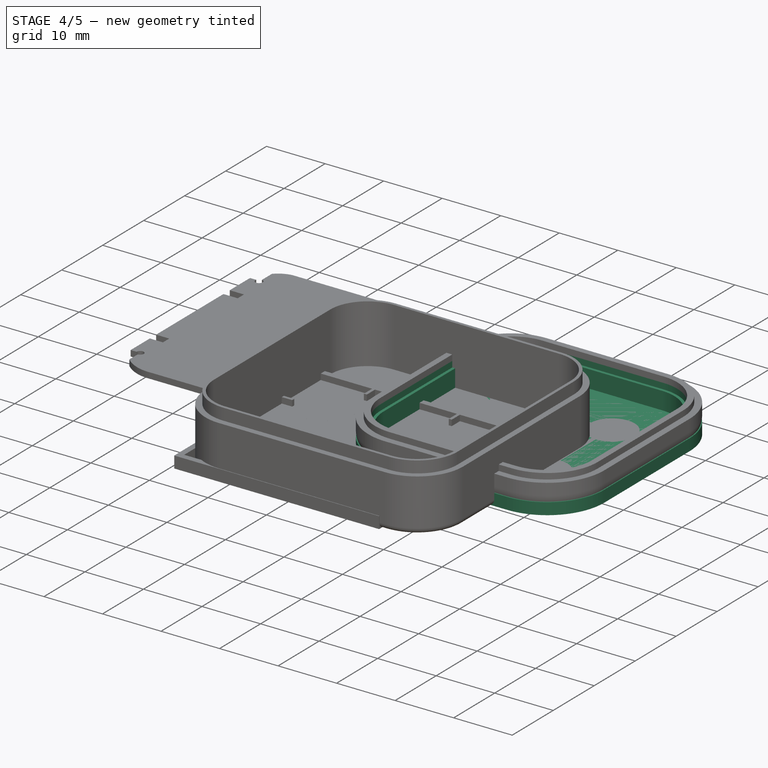
[diagram: stage 4 of 5 — iso view after this stage's code; geometry added in this stage tinted green]
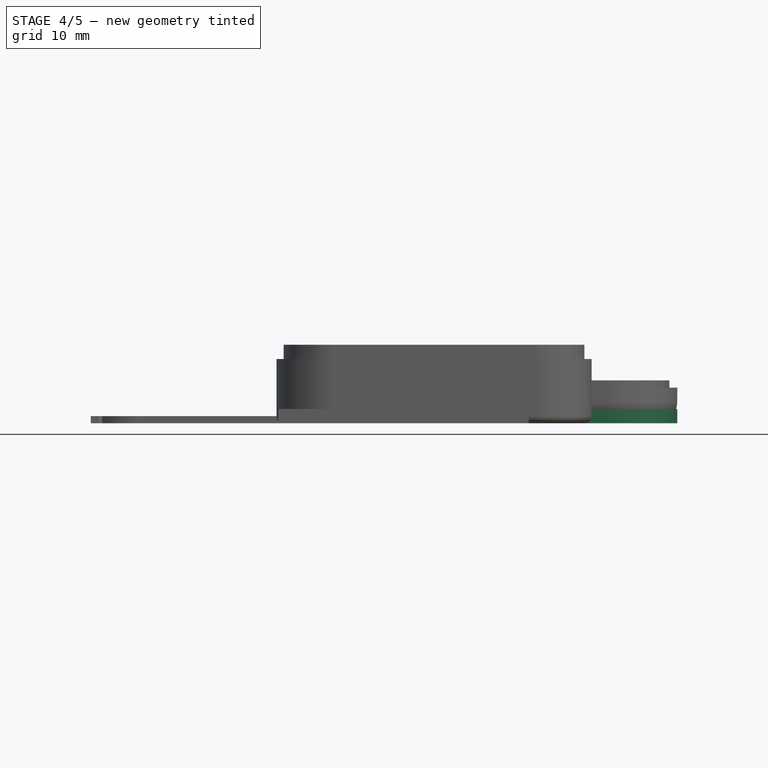
[diagram: stage 4 of 5 — front view after this stage's code; geometry added in this stage tinted green]
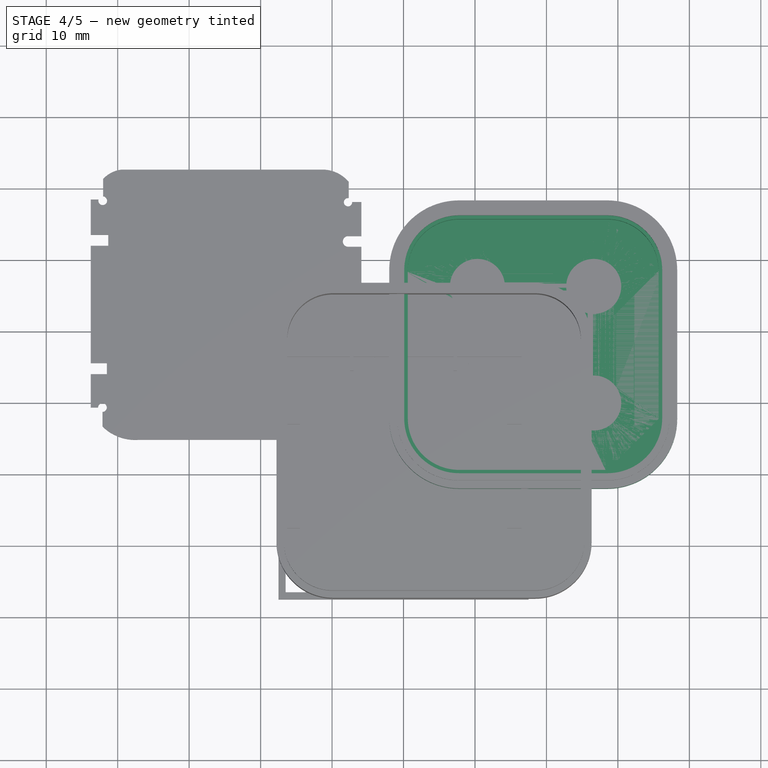
[diagram: stage 4 of 5 — top view after this stage's code; geometry added in this stage tinted green]
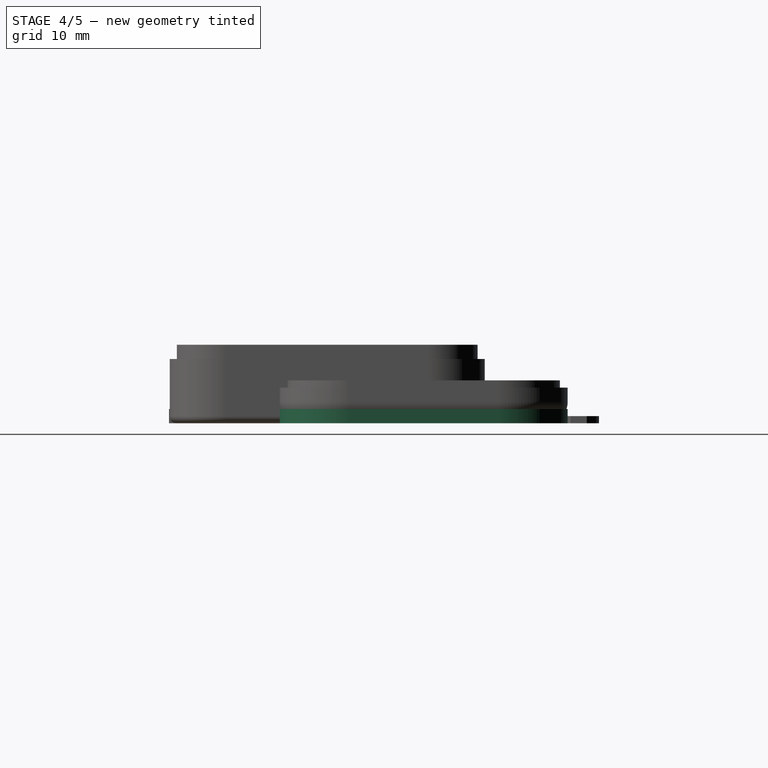
[diagram: stage 4 of 5 — right view after this stage's code; geometry added in this stage tinted green]
FEATURE [Sketcher::SketchObject] Sketch010
  ArcFitTolerance = 1e-06
  AttachmentSupport = -> [Pad]
  FullyConstrained = false
  MakeInternals = false
  MapMode = 5
  Placement = pos=(0,0,12) rot=(0,0,1;0rad)
  sketch-geometry (12):
    g0: LineSegment StartX=7.77 StartY=0 StartZ=0 EndX=28.53 EndY=0 EndZ=0
    g1: LineSegment StartX=36.3 StartY=7.77 StartZ=0 EndX=36.3 EndY=28.53 EndZ=0
    g2: LineSegment StartX=28.53 StartY=36.3 StartZ=0 EndX=7.76913 EndY=36.3 EndZ=0
    g3: LineSegment StartX=2.638e-13 StartY=28.5309 StartZ=0 EndX=2.638e-13 EndY=7.77 EndZ=0
    g4: GeomPoint [constr] X=0 Y=36.3 Z=0
    g5: ArcOfCircle CenterX=28.53 CenterY=28.53 CenterZ=0 NormalX=0 NormalY=0 NormalZ=1 AngleXU=0 Radius=7.77 StartAngle=0 EndAngle=1.5708
    g6: GeomPoint [constr] X=36.3 Y=36.3 Z=0
    g7: ArcOfCircle CenterX=28.53 CenterY=7.77 CenterZ=0 NormalX=0 NormalY=0 NormalZ=1 AngleXU=0 Radius=7.77 StartAngle=4.71239 EndAngle=6.28319
    g8: GeomPoint [constr] X=36.3 Y=0 Z=0
    g9: ArcOfCircle CenterX=7.77 CenterY=7.77 CenterZ=0 NormalX=0 NormalY=0 NormalZ=1 AngleXU=0 Radius=7.77 StartAngle=3.14159 EndAngle=4.71239
    g10: GeomPoint [constr] X=0 Y=0 Z=0
    g11: ArcOfCircle CenterX=7.76913 CenterY=28.5309 CenterZ=0 NormalX=0 NormalY=0 NormalZ=1 AngleXU=0 Radius=7.76913 StartAngle=1.5708 EndAngle=3.14159
  constraints (26):
    c: Horizontal(g0)
    c: Horizontal(g2)
    c: Vertical(g1)
    c: Vertical(g3)
    c: Coincident(g10,g-1)
    c: Distance(g6,g4) = 36.3
    c: Distance(g10,g4) = 36.3
    c: PointOnObject(g4,g2)
    c: PointOnObject(g4,g3)
    c: PointOnObject(g6,g2)
    c: PointOnObject(g6,g1)
    c: Tangent(g2,g5) = -1.5708
    c: Tangent(g1,g5) = -1.5708
    c: PointOnObject(g8,g1)
    c: PointOnObject(g8,g0)
    c: Tangent(g1,g7) = -1.5708
    c: Tangent(g0,g7) = -1.5708
    c: PointOnObject(g10,g3)
    c: PointOnObject(g10,g0)
    c: Tangent(g3,g9) = -1.5708
    c: Tangent(g0,g9) = -1.5708
    c: Tangent(g2,g11) = -1.5708
    c: Tangent(g3,g11) = -1.5708
    c: Radius(g5) = 7.77
    c: Radius(g7) = 7.77
    c: Radius(g9) = 7.77
FEATURE [Sketcher::SketchObject] Sketch011
  ArcFitTolerance = 1e-06
  AttachmentSupport = -> [Pad]
  FullyConstrained = false
  MakeInternals = false
  MapMode = 5
  Placement = pos=(0,0,12) rot=(0,0,1;0rad)
  sketch-geometry (12):
    g0: LineSegment StartX=7.77 StartY=0 StartZ=0 EndX=28.53 EndY=0 EndZ=0
    g1: LineSegment StartX=36.3 StartY=7.77 StartZ=0 EndX=36.3 EndY=28.53 EndZ=0
    g2: LineSegment StartX=28.53 StartY=36.3 StartZ=0 EndX=7.76913 EndY=36.3 EndZ=0
    g3: LineSegment StartX=2.638e-13 StartY=28.5309 StartZ=0 EndX=2.638e-13 EndY=7.77 EndZ=0
    g4: GeomPoint [constr] X=0 Y=36.3 Z=0
    g5: ArcOfCircle CenterX=28.53 CenterY=28.53 CenterZ=0 NormalX=0 NormalY=0 NormalZ=1 AngleXU=0 Radius=7.77 StartAngle=0 EndAngle=1.5708
    g6: GeomPoint [constr] X=36.3 Y=36.3 Z=0
    g7: ArcOfCircle CenterX=28.53 CenterY=7.77 CenterZ=0 NormalX=0 NormalY=0 NormalZ=1 AngleXU=0 Radius=7.77 StartAngle=4.71239 EndAngle=6.28319
    g8: GeomPoint [constr] X=36.3 Y=0 Z=0
    g9: ArcOfCircle CenterX=7.77 CenterY=7.77 CenterZ=0 NormalX=0 NormalY=0 NormalZ=1 AngleXU=0 Radius=7.77 StartAngle=3.14159 EndAngle=4.71239
    g10: GeomPoint [constr] X=0 Y=0 Z=0
    g11: ArcOfCircle CenterX=7.76913 CenterY=28.5309 CenterZ=0 NormalX=0 NormalY=0 NormalZ=1 AngleXU=0 Radius=7.76913 StartAngle=1.5708 EndAngle=3.14159
  constraints (26):
    c: Horizontal(g0)
    c: Horizontal(g2)
    c: Vertical(g1)
    c: Vertical(g3)
    c: Coincident(g10,g-1)
    c: Distance(g6,g4) = 36.3
    c: Distance(g10,g4) = 36.3
    c: PointOnObject(g4,g2)
    c: PointOnObject(g4,g3)
    c: PointOnObject(g6,g2)
    c: PointOnObject(g6,g1)
    c: Tangent(g2,g5) = -1.5708
    c: Tangent(g1,g5) = -1.5708
    c: PointOnObject(g8,g1)
    c: PointOnObject(g8,g0)
    c: Tangent(g1,g7) = -1.5708
    c: Tangent(g0,g7) = -1.5708
    c: PointOnObject(g10,g3)
    c: PointOnObject(g10,g0)
    c: Tangent(g3,g9) = -1.5708
    c: Tangent(g0,g9) = -1.5708
    c: Tangent(g2,g11) = -1.5708
    c: Tangent(g3,g11) = -1.5708
    c: Radius(g5) = 7.77
    c: Radius(g7) = 7.77
    c: Radius(g9) = 7.77
FEATURE [PartDesign::Body] Body  label="TapaV1"
  AllowCompound = false
  Group = -> [Sketch005,Sketch006,Sketch007,Pad001,Sketch008,Sketch009,Pad002,Pocket,Sketch010,Sketch011]
  Origin = -> Origin
  Tip = -> Pocket
FEATURE [Sketcher::SketchObject] Sketch012
  ArcFitTolerance = 1e-06
  AttachmentSupport = -> [Pad]
  FullyConstrained = false
  MakeInternals = false
  MapMode = 5
  Placement = pos=(0,0,12) rot=(0,0,1;0rad)
  sketch-geometry (12):
    g0: LineSegment StartX=7.77 StartY=0 StartZ=0 EndX=28.53 EndY=0 EndZ=0
    g1: LineSegment StartX=36.3 StartY=7.77 StartZ=0 EndX=36.3 EndY=28.53 EndZ=0
    g2: LineSegment StartX=28.53 StartY=36.3 StartZ=0 EndX=7.76913 EndY=36.3 EndZ=0
    g3: LineSegment StartX=2.638e-13 StartY=28.5309 StartZ=0 EndX=2.638e-13 EndY=7.77 EndZ=0
    g4: GeomPoint [constr] X=0 Y=36.3 Z=0
    g5: ArcOfCircle CenterX=28.53 CenterY=28.53 CenterZ=0 NormalX=0 NormalY=0 NormalZ=1 AngleXU=0 Radius=7.77 StartAngle=0 EndAngle=1.5708
    g6: GeomPoint [constr] X=36.3 Y=36.3 Z=0
    g7: ArcOfCircle CenterX=28.53 CenterY=7.77 CenterZ=0 NormalX=0 NormalY=0 NormalZ=1 AngleXU=0 Radius=7.77 StartAngle=4.71239 EndAngle=6.28319
    g8: GeomPoint [constr] X=36.3 Y=0 Z=0
    g9: ArcOfCircle CenterX=7.77 CenterY=7.77 CenterZ=0 NormalX=0 NormalY=0 NormalZ=1 AngleXU=0 Radius=7.77 StartAngle=3.14159 EndAngle=4.71239
    g10: GeomPoint [constr] X=0 Y=0 Z=0
    g11: ArcOfCircle CenterX=7.76913 CenterY=28.5309 CenterZ=0 NormalX=0 NormalY=0 NormalZ=1 AngleXU=0 Radius=7.76913 StartAngle=1.5708 EndAngle=3.14159
  constraints (26):
    c: Horizontal(g0)
    c: Horizontal(g2)
    c: Vertical(g1)
    c: Vertical(g3)
    c: Coincident(g10,g-1)
    c: Distance(g6,g4) = 36.3
    c: Distance(g10,g4) = 36.3
    c: PointOnObject(g4,g2)
    c: PointOnObject(g4,g3)
    c: PointOnObject(g6,g2)
    c: PointOnObject(g6,g1)
    c: Tangent(g2,g5) = -1.5708
    c: Tangent(g1,g5) = -1.5708
    c: PointOnObject(g8,g1)
    c: PointOnObject(g8,g0)
    c: Tangent(g1,g7) = -1.5708
    c: Tangent(g0,g7) = -1.5708
    c: PointOnObject(g10,g3)
    c: PointOnObject(g10,g0)
    c: Tangent(g3,g9) = -1.5708
    c: Tangent(g0,g9) = -1.5708
    c: Tangent(g2,g11) = -1.5708
    c: Tangent(g3,g11) = -1.5708
    c: Radius(g5) = 7.77
    c: Radius(g7) = 7.77
    c: Radius(g9) = 7.77
FEATURE [Sketcher::SketchObject] Sketch013
  ArcFitTolerance = 1e-06
  FullyConstrained = false
  MakeInternals = false
  sketch-geometry (8):
    g0: LineSegment StartX=7.77 StartY=-2 StartZ=0 EndX=28.53 EndY=-2 EndZ=0
    g1: ArcOfCircle CenterX=28.53 CenterY=7.77 CenterZ=0 NormalX=0 NormalY=0 NormalZ=1 AngleXU=0 Radius=9.77 StartAngle=4.71239 EndAngle=6.28319
    g2: LineSegment StartX=38.3 StartY=7.77 StartZ=0 EndX=38.3 EndY=28.53 EndZ=0
    g3: ArcOfCircle CenterX=28.53 CenterY=28.53 CenterZ=0 NormalX=0 NormalY=0 NormalZ=1 AngleXU=0 Radius=9.77 StartAngle=0 EndAngle=1.5708
    g4: LineSegment StartX=28.53 StartY=38.3 StartZ=0 EndX=7.76913 EndY=38.3 EndZ=0
    g5: ArcOfCircle CenterX=7.76913 CenterY=28.5309 CenterZ=0 NormalX=0 NormalY=0 NormalZ=1 AngleXU=0 Radius=9.76913 StartAngle=1.5708 EndAngle=3.14159
    g6: LineSegment StartX=-2 StartY=28.5309 StartZ=0 EndX=-2 EndY=7.77 EndZ=0
    g7: ArcOfCircle CenterX=7.77 CenterY=7.77 CenterZ=0 NormalX=0 NormalY=0 NormalZ=1 AngleXU=0 Radius=9.77 StartAngle=3.14159 EndAngle=4.71239
  constraints (12):
    c: Horizontal(g0)
    c: Coincident(g0,g1)
    c: Coincident(g1,g2)
    c: Vertical(g2)
    c: Coincident(g2,g3)
    c: Coincident(g3,g4)
    c: Horizontal(g4)
    c: Coincident(g4,g5)
    c: Coincident(g5,g6)
    c: Vertical(g6)
    c: Coincident(g6,g7)
    c: Coincident(g7,g0)
FEATURE [PartDesign::Pad] Pad003
  Direction = (0,0,1)
  Length = 2
  Length2 = 10
  Profile = -> Sketch013
  ReferenceAxis = -> Sketch013 [N_Axis]
  Suppressed = false
  Type = 0
FEATURE [Sketcher::SketchObject] Sketch
  ArcFitTolerance = 1e-06
  AttachmentSupport = -> [Pad003]
  FullyConstrained = false
  MakeInternals = false
  MapMode = 5
  Placement = pos=(0,0,2) rot=(0,0,1;0rad)
  sketch-geometry (8):
    g0: LineSegment StartX=7.77 StartY=0.1 StartZ=0 EndX=28.53 EndY=0.1 EndZ=0
    g1: ArcOfCircle CenterX=28.53 CenterY=7.77 CenterZ=0 NormalX=0 NormalY=0 NormalZ=1 AngleXU=0 Radius=7.67 StartAngle=4.71239 EndAngle=6.28319
    g2: LineSegment StartX=36.2 StartY=7.77 StartZ=0 EndX=36.2 EndY=28.53 EndZ=0
    g3: ArcOfCircle CenterX=28.53 CenterY=28.53 CenterZ=0 NormalX=0 NormalY=0 NormalZ=1 AngleXU=0 Radius=7.67 StartAngle=0 EndAngle=1.5708
    g4: LineSegment StartX=28.53 StartY=36.2 StartZ=0 EndX=7.76913 EndY=36.2 EndZ=0
    g5: ArcOfCircle CenterX=7.76913 CenterY=28.5309 CenterZ=0 NormalX=0 NormalY=0 NormalZ=1 AngleXU=0 Radius=7.66913 StartAngle=1.5708 EndAngle=3.14159
    g6: LineSegment StartX=0.1 StartY=28.5309 StartZ=0 EndX=0.1 EndY=7.77 EndZ=0
    g7: ArcOfCircle CenterX=7.77 CenterY=7.77 CenterZ=0 NormalX=0 NormalY=0 NormalZ=1 AngleXU=0 Radius=7.67 StartAngle=3.14159 EndAngle=4.71239
  constraints (12):
    c: Horizontal(g0)
    c: Coincident(g0,g1)
    c: Coincident(g1,g2)
    c: Vertical(g2)
    c: Coincident(g2,g3)
    c: Coincident(g3,g4)
    c: Horizontal(g4)
    c: Coincident(g4,g5)
    c: Coincident(g5,g6)
    c: Vertical(g6)
    c: Coincident(g6,g7)
    c: Coincident(g7,g0)
FEATURE [PartDesign::Pad] Pad004
  BaseFeature = -> Pad003
  Direction = (0,0,1)
  Length = 2
  Length2 = 10
  Profile = -> Sketch
  ReferenceAxis = -> Sketch [N_Axis]
  Suppressed = false
  Type = 0
FEATURE [Sketcher::SketchObject] Sketch014
  ArcFitTolerance = 1e-06
  AttachmentSupport = -> [Pad004]
  FullyConstrained = false
  MakeInternals = false
  MapMode = 5
  Placement = pos=(0,0,4) rot=(0,0,1;0rad)
  sketch-geometry (8):
    g0: LineSegment StartX=7.77 StartY=0.6 StartZ=0 EndX=28.53 EndY=0.6 EndZ=0
    g1: ArcOfCircle CenterX=28.53 CenterY=7.77 CenterZ=0 NormalX=0 NormalY=0 NormalZ=1 AngleXU=0 Radius=7.17 StartAngle=4.71239 EndAngle=6.28319
    g2: LineSegment StartX=35.7 StartY=7.77 StartZ=0 EndX=35.7 EndY=28.53 EndZ=0
    g3: ArcOfCircle CenterX=28.53 CenterY=28.53 CenterZ=0 NormalX=0 NormalY=0 NormalZ=1 AngleXU=0 Radius=7.17 StartAngle=0 EndAngle=1.5708
    g4: LineSegment StartX=28.53 StartY=35.7 StartZ=0 EndX=7.76913 EndY=35.7 EndZ=0
    g5: ArcOfCircle CenterX=7.76913 CenterY=28.5309 CenterZ=0 NormalX=0 NormalY=0 NormalZ=1 AngleXU=0 Radius=7.16913 StartAngle=1.5708 EndAngle=3.14159
    g6: LineSegment StartX=0.6 StartY=28.5309 StartZ=0 EndX=0.6 EndY=7.77 EndZ=0
    g7: ArcOfCircle CenterX=7.77 CenterY=7.77 CenterZ=0 NormalX=0 NormalY=0 NormalZ=1 AngleXU=0 Radius=7.17 StartAngle=3.14159 EndAngle=4.71239
  constraints (12):
    c: Horizontal(g0)
    c: Coincident(g0,g1)
    c: Coincident(g1,g2)
    c: Vertical(g2)
    c: Coincident(g2,g3)
    c: Coincident(g3,g4)
    c: Horizontal(g4)
    c: Coincident(g4,g5)
    c: Coincident(g5,g6)
    c: Vertical(g6)
    c: Coincident(g6,g7)
    c: Coincident(g7,g0)
FEATURE [PartDesign::Pocket] Pocket002
  BaseFeature = -> Pad004
  Direction = (0,0,-1)
  Length = 3
  Length2 = 5
  Profile = -> Sketch014
  ReferenceAxis = -> Sketch014 [N_Axis]
  Suppressed = false
  Type = 0
FEATURE [PartDesign::Fillet] Fillet001
  Base = -> Pocket003 [Edge39,Edge40,Edge38,Edge37]
  BaseFeature = -> Pocket003
  Radius = 1
  SupportTransform = false
  Suppressed = false
  UseAllEdges = false
FEATURE [Sketcher::SketchObject] Sketch021
  ArcFitTolerance = 1e-06
  AttachmentSupport = -> [Fillet001]
  FullyConstrained = false
  MakeInternals = false
  MapMode = 5
  Placement = pos=(0,0,5) rot=(0,0,1;0rad)
  sketch-geometry (8):
    g0: LineSegment StartX=7.77 StartY=0.1 StartZ=0 EndX=28.53 EndY=0.1 EndZ=0
    g1: ArcOfCircle CenterX=7.77 CenterY=7.77 CenterZ=0 NormalX=0 NormalY=0 NormalZ=1 AngleXU=0 Radius=7.67 StartAngle=3.14159 EndAngle=4.71239
    g2: LineSegment StartX=0.1 StartY=28.5309 StartZ=0 EndX=0.1 EndY=7.77 EndZ=0
    g3: ArcOfCircle CenterX=7.76913 CenterY=28.5309 CenterZ=0 NormalX=0 NormalY=0 NormalZ=1 AngleXU=0 Radius=7.66913 StartAngle=1.5708 EndAngle=3.14159
    g4: LineSegment StartX=28.53 StartY=36.2 StartZ=0 EndX=7.76913 EndY=36.2 EndZ=0
    g5: ArcOfCircle CenterX=28.53 CenterY=28.53 CenterZ=0 NormalX=0 NormalY=0 NormalZ=1 AngleXU=0 Radius=7.67 StartAngle=0 EndAngle=1.5708
    g6: LineSegment StartX=36.2 StartY=7.77 StartZ=0 EndX=36.2 EndY=28.53 EndZ=0
    g7: ArcOfCircle CenterX=28.53 CenterY=7.77 CenterZ=0 NormalX=0 NormalY=0 NormalZ=1 AngleXU=0 Radius=7.67 StartAngle=4.71239 EndAngle=6.28319
  constraints (12):
    c: Horizontal(g0)
    c: Coincident(g0,g1)
    c: Coincident(g1,g2)
    c: Vertical(g2)
    c: Coincident(g2,g3)
    c: Coincident(g3,g4)
    c: Horizontal(g4)
    c: Coincident(g4,g5)
    c: Coincident(g5,g6)
    c: Vertical(g6)
    c: Coincident(g6,g7)
    c: Coincident(g7,g0)
FEATURE [PartDesign::Pocket] Pocket004
  BaseFeature = -> Fillet001
  Direction = (0,0,-1)
  Length = 4
  Length2 = 5
  Profile = -> Sketch021
  ReferenceAxis = -> Sketch021 [N_Axis]
  Suppressed = false
  Type = 0
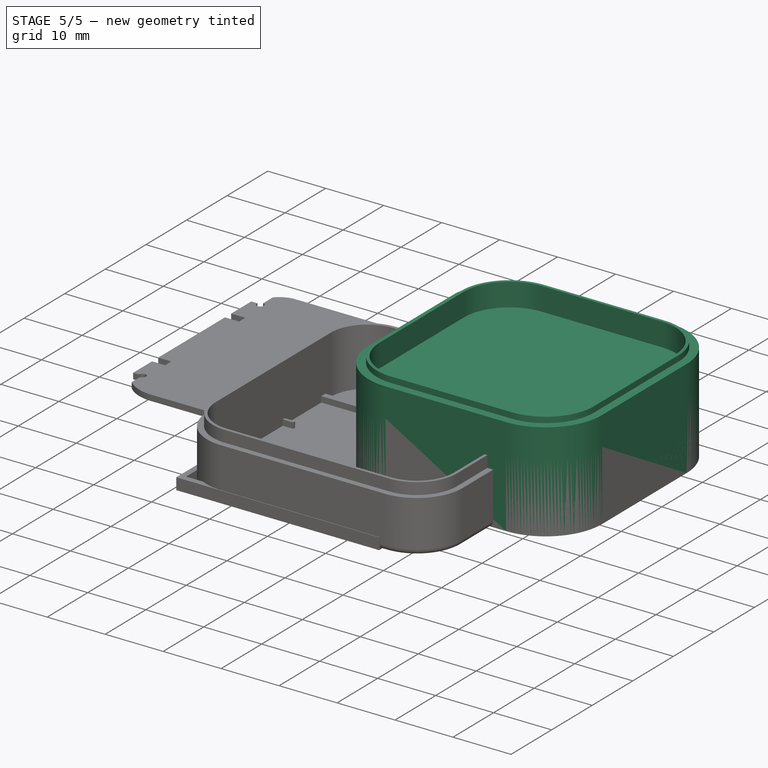
[diagram: stage 5 of 5 — iso view after this stage's code; geometry added in this stage tinted green]
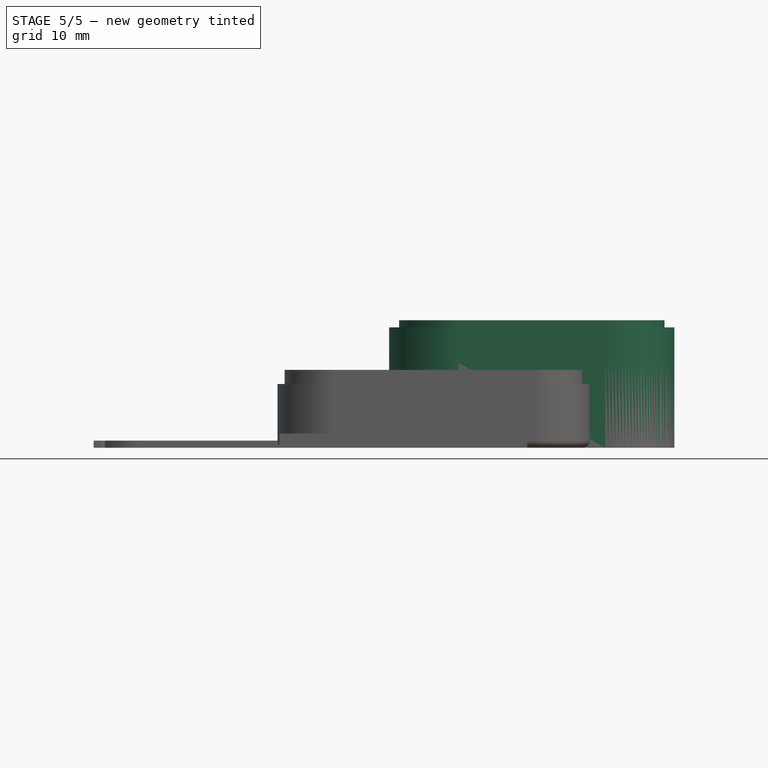
[diagram: stage 5 of 5 — front view after this stage's code; geometry added in this stage tinted green]
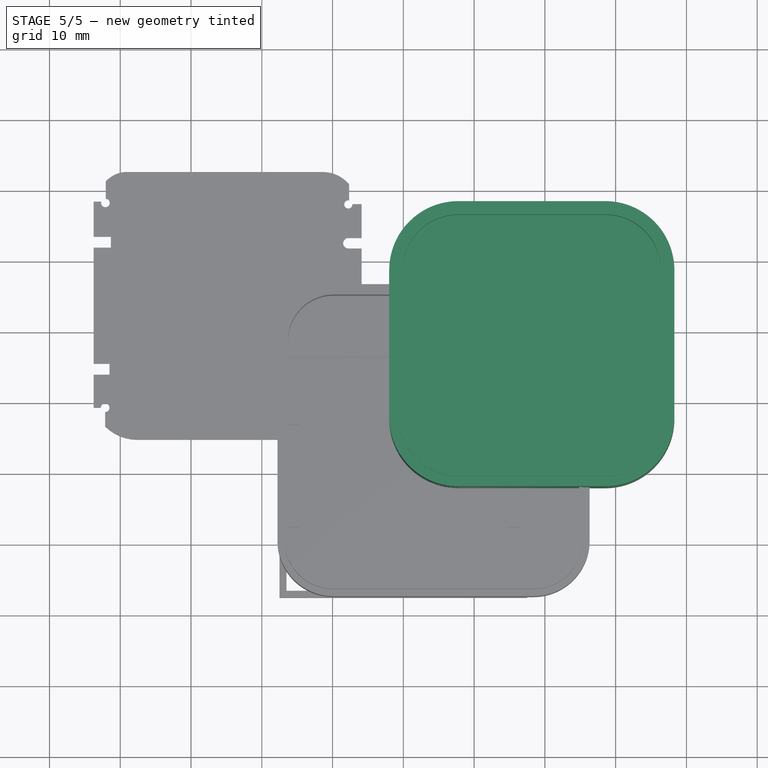
[diagram: stage 5 of 5 — top view after this stage's code; geometry added in this stage tinted green]
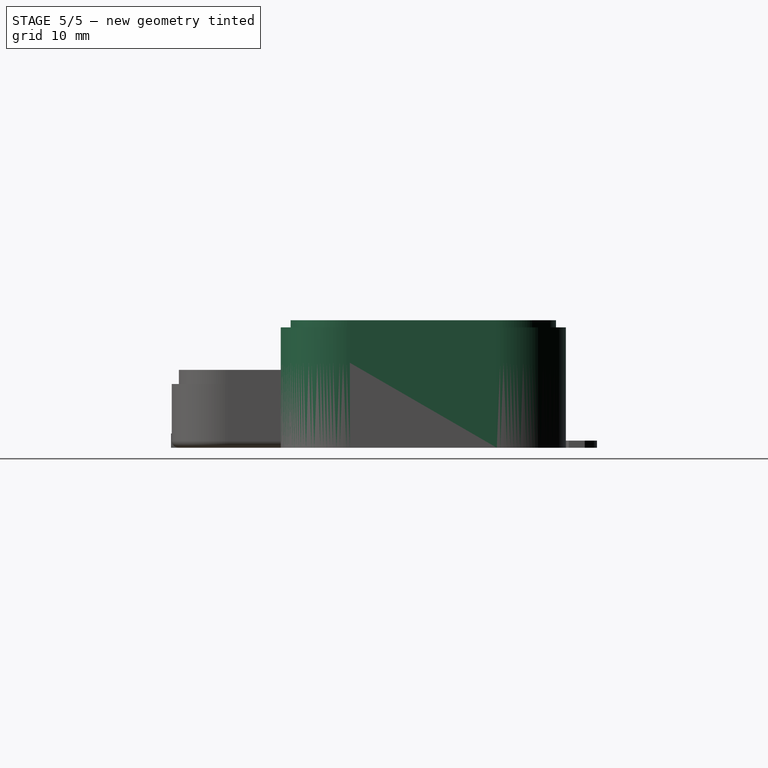
[diagram: stage 5 of 5 — right view after this stage's code; geometry added in this stage tinted green]
FEATURE [Image::ImagePlane] IMG_3513
  Placement = pos=(18,21,1) rot=(0,0,1;0rad)
  XSize = 111.67
  YSize = 148.89
FEATURE [Sketcher::SketchObject] Sketch002
  ArcFitTolerance = 1e-06
  FullyConstrained = false
  MakeInternals = false
  sketch-geometry (8):
    g0: LineSegment StartX=7.77 StartY=-2 StartZ=0 EndX=28.53 EndY=-2 EndZ=0
    g1: ArcOfCircle CenterX=28.53 CenterY=7.77 CenterZ=0 NormalX=0 NormalY=0 NormalZ=1 AngleXU=0 Radius=9.77 StartAngle=4.71239 EndAngle=6.28319
    g2: LineSegment StartX=38.3 StartY=7.77 StartZ=0 EndX=38.3 EndY=28.53 EndZ=0
    g3: ArcOfCircle CenterX=28.53 CenterY=28.53 CenterZ=0 NormalX=0 NormalY=0 NormalZ=1 AngleXU=0 Radius=9.77 StartAngle=0 EndAngle=1.5708
    g4: LineSegment StartX=28.53 StartY=38.3 StartZ=0 EndX=7.76913 EndY=38.3 EndZ=0
    g5: ArcOfCircle CenterX=7.76913 CenterY=28.5309 CenterZ=0 NormalX=0 NormalY=0 NormalZ=1 AngleXU=0 Radius=9.76913 StartAngle=1.5708 EndAngle=3.14159
    g6: LineSegment StartX=-2 StartY=28.5309 StartZ=0 EndX=-2 EndY=7.77 EndZ=0
    g7: ArcOfCircle CenterX=7.77 CenterY=7.77 CenterZ=0 NormalX=0 NormalY=0 NormalZ=1 AngleXU=0 Radius=9.77 StartAngle=3.14159 EndAngle=4.71239
  constraints (12):
    c: Horizontal(g0)
    c: Coincident(g0,g1)
    c: Coincident(g1,g2)
    c: Vertical(g2)
    c: Coincident(g2,g3)
    c: Coincident(g3,g4)
    c: Horizontal(g4)
    c: Coincident(g4,g5)
    c: Coincident(g5,g6)
    c: Vertical(g6)
    c: Coincident(g6,g7)
    c: Coincident(g7,g0)
FEATURE [PartDesign::Pad] Pad
  Direction = (0,0,1)
  Length = 12
  Length2 = 10
  Profile = -> Sketch002
  ReferenceAxis = -> Sketch002 [N_Axis]
  Suppressed = false
  Type = 0
FEATURE [Sketcher::SketchObject] Sketch003
  ArcFitTolerance = 1e-06
  FullyConstrained = false
  MakeInternals = false
  Placement = pos=(0,0,12) rot=(0,0,1;0rad)
  sketch-geometry (8):
    g0: LineSegment StartX=7.77 StartY=-1 StartZ=0 EndX=28.53 EndY=-1 EndZ=0
    g1: ArcOfCircle CenterX=28.53 CenterY=7.77 CenterZ=0 NormalX=0 NormalY=0 NormalZ=1 AngleXU=0 Radius=8.77 StartAngle=4.71239 EndAngle=6.28319
    g2: LineSegment StartX=37.3 StartY=7.77 StartZ=0 EndX=37.3 EndY=28.53 EndZ=0
    g3: ArcOfCircle CenterX=28.53 CenterY=28.53 CenterZ=0 NormalX=0 NormalY=0 NormalZ=1 AngleXU=0 Radius=8.77 StartAngle=0 EndAngle=1.5708
    g4: LineSegment StartX=28.53 StartY=37.3 StartZ=0 EndX=7.76913 EndY=37.3 EndZ=0
    g5: ArcOfCircle CenterX=7.76913 CenterY=28.5309 CenterZ=0 NormalX=0 NormalY=0 NormalZ=1 AngleXU=0 Radius=8.76913 StartAngle=1.5708 EndAngle=3.14159
    g6: LineSegment StartX=-1 StartY=28.5309 StartZ=0 EndX=-1 EndY=7.77 EndZ=0
    g7: ArcOfCircle CenterX=7.77 CenterY=7.77 CenterZ=0 NormalX=0 NormalY=0 NormalZ=1 AngleXU=0 Radius=8.77 StartAngle=3.14159 EndAngle=4.71239
  constraints (12):
    c: Horizontal(g0)
    c: Coincident(g0,g1)
    c: Coincident(g1,g2)
    c: Vertical(g2)
    c: Coincident(g2,g3)
    c: Coincident(g3,g4)
    c: Horizontal(g4)
    c: Coincident(g4,g5)
    c: Coincident(g5,g6)
    c: Vertical(g6)
    c: Coincident(g6,g7)
    c: Coincident(g7,g0)
FEATURE [PartDesign::Pocket] Pocket001
  BaseFeature = -> Pad
  Direction = (0,0,-1)
  Length = 10
  Length2 = 5
  Profile = -> Sketch003
  ReferenceAxis = -> Sketch003 [N_Axis]
  Suppressed = false
  Type = 0
FEATURE [PartDesign::Body] Body001  label="Caja"
  AllowCompound = false
  Group = -> [Sketch002,Pad,Sketch003,Pocket001]
  Origin = -> Origin001
  Tip = -> Pocket001
FEATURE [Sketcher::SketchObject] Sketch005
  ArcFitTolerance = 1e-06
  FullyConstrained = false
  MakeInternals = false
  Placement = pos=(0,0,12) rot=(0,0,1;0rad)
  sketch-geometry (8):
    g0: LineSegment StartX=7.77 StartY=-2 StartZ=0 EndX=28.53 EndY=-2 EndZ=0
    g1: ArcOfCircle CenterX=28.53 CenterY=7.77 CenterZ=0 NormalX=0 NormalY=0 NormalZ=1 AngleXU=0 Radius=9.77 StartAngle=4.71239 EndAngle=6.28319
    g2: LineSegment StartX=38.3 StartY=7.77 StartZ=0 EndX=38.3 EndY=28.53 EndZ=0
    g3: ArcOfCircle CenterX=28.53 CenterY=28.53 CenterZ=0 NormalX=0 NormalY=0 NormalZ=1 AngleXU=0 Radius=9.77 StartAngle=0 EndAngle=1.5708
    g4: LineSegment StartX=28.53 StartY=38.3 StartZ=0 EndX=7.76913 EndY=38.3 EndZ=0
    g5: ArcOfCircle CenterX=7.76913 CenterY=28.5309 CenterZ=0 NormalX=0 NormalY=0 NormalZ=1 AngleXU=0 Radius=9.76913 StartAngle=1.5708 EndAngle=3.14159
    g6: LineSegment StartX=-2 StartY=28.5309 StartZ=0 EndX=-2 EndY=7.77 EndZ=0
    g7: ArcOfCircle CenterX=7.77 CenterY=7.77 CenterZ=0 NormalX=0 NormalY=0 NormalZ=1 AngleXU=0 Radius=9.77 StartAngle=3.14159 EndAngle=4.71239
  constraints (12):
    c: Horizontal(g0)
    c: Coincident(g0,g1)
    c: Coincident(g1,g2)
    c: Vertical(g2)
    c: Coincident(g2,g3)
    c: Coincident(g3,g4)
    c: Horizontal(g4)
    c: Coincident(g4,g5)
    c: Coincident(g5,g6)
    c: Vertical(g6)
    c: Coincident(g6,g7)
    c: Coincident(g7,g0)
FEATURE [PartDesign::Pad] Pad001
  Direction = (0,0,1)
  Length = 5
  Length2 = 10
  Placement = pos=(0,0,12) rot=(0,0,1;0rad)
  Profile = -> Sketch005
  ReferenceAxis = -> Sketch005 [N_Axis]
  Suppressed = false
  Type = 0
FEATURE [Sketcher::SketchObject] Sketch006
  ArcFitTolerance = 1e-06
  AttachmentSupport = -> [Pad001]
  FullyConstrained = false
  MakeInternals = false
  MapMode = 5
  Placement = pos=(0,0,17) rot=(0,0,1;0rad)
  sketch-geometry (8):
    g0: LineSegment StartX=7.77 StartY=-0.6 StartZ=0 EndX=28.53 EndY=-0.6 EndZ=0
    g1: ArcOfCircle CenterX=28.53 CenterY=7.77 CenterZ=0 NormalX=0 NormalY=0 NormalZ=1 AngleXU=0 Radius=8.37 StartAngle=4.71239 EndAngle=6.28319
    g2: LineSegment StartX=36.9 StartY=7.77 StartZ=0 EndX=36.9 EndY=28.53 EndZ=0
    g3: ArcOfCircle CenterX=28.53 CenterY=28.53 CenterZ=0 NormalX=0 NormalY=0 NormalZ=1 AngleXU=0 Radius=8.37 StartAngle=0 EndAngle=1.5708
    g4: LineSegment StartX=28.53 StartY=36.9 StartZ=0 EndX=7.76913 EndY=36.9 EndZ=0
    g5: ArcOfCircle CenterX=7.76913 CenterY=28.5309 CenterZ=0 NormalX=0 NormalY=0 NormalZ=1 AngleXU=0 Radius=8.36913 StartAngle=1.5708 EndAngle=3.14159
    g6: LineSegment StartX=-0.6 StartY=28.5309 StartZ=0 EndX=-0.6 EndY=7.77 EndZ=0
    g7: ArcOfCircle CenterX=7.77 CenterY=7.77 CenterZ=0 NormalX=0 NormalY=0 NormalZ=1 AngleXU=0 Radius=8.37 StartAngle=3.14159 EndAngle=4.71239
  constraints (12):
    c: Horizontal(g0)
    c: Coincident(g0,g1)
    c: Coincident(g1,g2)
    c: Vertical(g2)
    c: Coincident(g2,g3)
    c: Coincident(g3,g4)
    c: Horizontal(g4)
    c: Coincident(g4,g5)
    c: Coincident(g5,g6)
    c: Vertical(g6)
    c: Coincident(g6,g7)
    c: Coincident(g7,g0)
FEATURE [Sketcher::SketchObject] Sketch007
  ArcFitTolerance = 1e-06
  AttachmentSupport = -> [Pad001]
  FullyConstrained = false
  MakeInternals = false
  MapMode = 5
  Placement = pos=(0,0,17) rot=(0,0,1;0rad)
  sketch-geometry (8):
    g0: LineSegment StartX=7.77 StartY=-0.1 StartZ=0 EndX=28.53 EndY=-0.1 EndZ=0
    g1: ArcOfCircle CenterX=28.53 CenterY=7.77 CenterZ=0 NormalX=0 NormalY=0 NormalZ=1 AngleXU=0 Radius=7.87 StartAngle=4.71239 EndAngle=6.28319
    g2: LineSegment StartX=36.4 StartY=7.77 StartZ=0 EndX=36.4 EndY=28.53 EndZ=0
    g3: ArcOfCircle CenterX=28.53 CenterY=28.53 CenterZ=0 NormalX=0 NormalY=0 NormalZ=1 AngleXU=0 Radius=7.87 StartAngle=0 EndAngle=1.5708
    g4: LineSegment StartX=28.53 StartY=36.4 StartZ=0 EndX=7.76913 EndY=36.4 EndZ=0
    g5: ArcOfCircle CenterX=7.76913 CenterY=28.5309 CenterZ=0 NormalX=0 NormalY=0 NormalZ=1 AngleXU=0 Radius=7.86913 StartAngle=1.5708 EndAngle=3.14159
    g6: LineSegment StartX=-0.1 StartY=28.5309 StartZ=0 EndX=-0.1 EndY=7.77 EndZ=0
    g7: ArcOfCircle CenterX=7.77 CenterY=7.77 CenterZ=0 NormalX=0 NormalY=0 NormalZ=1 AngleXU=0 Radius=7.87 StartAngle=3.14159 EndAngle=4.71239
  constraints (12):
    c: Horizontal(g0)
    c: Coincident(g0,g1)
    c: Coincident(g1,g2)
    c: Vertical(g2)
    c: Coincident(g2,g3)
    c: Coincident(g3,g4)
    c: Horizontal(g4)
    c: Coincident(g4,g5)
    c: Coincident(g5,g6)
    c: Vertical(g6)
    c: Coincident(g6,g7)
    c: Coincident(g7,g0)
FEATURE [Sketcher::SketchObject] Sketch008
  ArcFitTolerance = 1e-06
  AttachmentSupport = -> [Pad001]
  FullyConstrained = false
  MakeInternals = false
  MapMode = 5
  Placement = pos=(0,0,17) rot=(0,0,1;0rad)
  sketch-geometry (8):
    g0: LineSegment StartX=7.77 StartY=-0.1 StartZ=0 EndX=28.53 EndY=-0.1 EndZ=0
    g1: ArcOfCircle CenterX=28.53 CenterY=7.77 CenterZ=0 NormalX=0 NormalY=0 NormalZ=1 AngleXU=0 Radius=7.87 StartAngle=4.71239 EndAngle=6.28319
    g2: LineSegment StartX=36.4 StartY=7.77 StartZ=0 EndX=36.4 EndY=28.53 EndZ=0
    g3: ArcOfCircle CenterX=28.53 CenterY=28.53 CenterZ=0 NormalX=0 NormalY=0 NormalZ=1 AngleXU=0 Radius=7.87 StartAngle=0 EndAngle=1.5708
    g4: LineSegment StartX=28.53 StartY=36.4 StartZ=0 EndX=7.76913 EndY=36.4 EndZ=0
    g5: ArcOfCircle CenterX=7.76913 CenterY=28.5309 CenterZ=0 NormalX=0 NormalY=0 NormalZ=1 AngleXU=0 Radius=7.86913 StartAngle=1.5708 EndAngle=3.14159
    g6: LineSegment StartX=-0.1 StartY=28.5309 StartZ=0 EndX=-0.1 EndY=7.77 EndZ=0
    g7: ArcOfCircle CenterX=7.77 CenterY=7.77 CenterZ=0 NormalX=0 NormalY=0 NormalZ=1 AngleXU=0 Radius=7.87 StartAngle=3.14159 EndAngle=4.71239
  constraints (12):
    c: Horizontal(g0)
    c: Coincident(g0,g1)
    c: Coincident(g1,g2)
    c: Vertical(g2)
    c: Coincident(g2,g3)
    c: Coincident(g3,g4)
    c: Horizontal(g4)
    c: Coincident(g4,g5)
    c: Coincident(g5,g6)
    c: Vertical(g6)
    c: Coincident(g6,g7)
    c: Coincident(g7,g0)
FEATURE [Sketcher::SketchObject] Sketch009
  ArcFitTolerance = 1e-06
  FullyConstrained = false
  MakeInternals = false
  Placement = pos=(0,0,17) rot=(0,0,1;0rad)
  sketch-geometry (16):
    g0: LineSegment StartX=7.77 StartY=-0.6 StartZ=0 EndX=28.53 EndY=-0.6 EndZ=0
    g1: ArcOfCircle CenterX=28.53 CenterY=7.77 CenterZ=0 NormalX=0 NormalY=0 NormalZ=1 AngleXU=0 Radius=8.37 StartAngle=4.71239 EndAngle=6.28319
    g2: LineSegment StartX=36.9 StartY=7.77 StartZ=0 EndX=36.9 EndY=28.53 EndZ=0
    g3: ArcOfCircle CenterX=28.53 CenterY=28.53 CenterZ=0 NormalX=0 NormalY=0 NormalZ=1 AngleXU=0 Radius=8.37 StartAngle=0 EndAngle=1.5708
    g4: LineSegment StartX=28.53 StartY=36.9 StartZ=0 EndX=7.76913 EndY=36.9 EndZ=0
    g5: ArcOfCircle CenterX=7.76913 CenterY=28.5309 CenterZ=0 NormalX=0 NormalY=0 NormalZ=1 AngleXU=0 Radius=8.36913 StartAngle=1.5708 EndAngle=3.14159
    g6: LineSegment StartX=-0.6 StartY=28.5309 StartZ=0 EndX=-0.6 EndY=7.77 EndZ=0
    g7: ArcOfCircle CenterX=7.77 CenterY=7.77 CenterZ=0 NormalX=0 NormalY=0 NormalZ=1 AngleXU=0 Radius=8.37 StartAngle=3.14159 EndAngle=4.71239
    g8: LineSegment StartX=7.77 StartY=-0.1 StartZ=0 EndX=28.53 EndY=-0.1 EndZ=0
    g9: ArcOfCircle CenterX=28.53 CenterY=7.77 CenterZ=0 NormalX=0 NormalY=0 NormalZ=1 AngleXU=0 Radius=7.87 StartAngle=4.71239 EndAngle=6.28319
    g10: LineSegment StartX=36.4 StartY=7.77 StartZ=0 EndX=36.4 EndY=28.53 EndZ=0
    g11: ArcOfCircle CenterX=28.53 CenterY=28.53 CenterZ=0 NormalX=0 NormalY=0 NormalZ=1 AngleXU=0 Radius=7.87 StartAngle=0 EndAngle=1.5708
    g12: LineSegment StartX=28.53 StartY=36.4 StartZ=0 EndX=7.76913 EndY=36.4 EndZ=0
    g13: ArcOfCircle CenterX=7.76913 CenterY=28.5309 CenterZ=0 NormalX=0 NormalY=0 NormalZ=1 AngleXU=0 Radius=7.86913 StartAngle=1.5708 EndAngle=3.14159
    g14: LineSegment StartX=-0.1 StartY=28.5309 StartZ=0 EndX=-0.1 EndY=7.77 EndZ=0
    g15: ArcOfCircle CenterX=7.77 CenterY=7.77 CenterZ=0 NormalX=0 NormalY=0 NormalZ=1 AngleXU=0 Radius=7.87 StartAngle=3.14159 EndAngle=4.71239
  constraints (24):
    c: Horizontal(g0)
    c: Coincident(g0,g1)
    c: Coincident(g1,g2)
    c: Vertical(g2)
    c: Coincident(g2,g3)
    c: Coincident(g3,g4)
    c: Horizontal(g4)
    c: Coincident(g4,g5)
    c: Coincident(g5,g6)
    c: Vertical(g6)
    c: Coincident(g6,g7)
    c: Coincident(g7,g0)
    c: Horizontal(g8)
    c: Coincident(g8,g9)
    c: Coincident(g9,g10)
    c: Vertical(g10)
    c: Coincident(g10,g11)
    c: Coincident(g11,g12)
    c: Horizontal(g12)
    c: Coincident(g12,g13)
    c: Coincident(g13,g14)
    c: Vertical(g14)
    c: Coincident(g14,g15)
    c: Coincident(g15,g8)
FEATURE [PartDesign::Pad] Pad002
  BaseFeature = -> Pad001
  Direction = (0,0,1)
  Length = 1
  Length2 = 10
  Placement = pos=(0,0,12) rot=(0,0,1;0rad)
  Profile = -> Sketch009
  ReferenceAxis = -> Sketch009 [N_Axis]
  Suppressed = false
  Type = 0
FEATURE [PartDesign::Pocket] Pocket
  BaseFeature = -> Pad002
  Direction = (0,0,-1)
  Length = 3
  Length2 = 5
  Placement = pos=(0,0,12) rot=(0,0,1;0rad)
  Profile = -> Sketch008
  ReferenceAxis = -> Sketch008 [N_Axis]
  Suppressed = false
  Type = 0
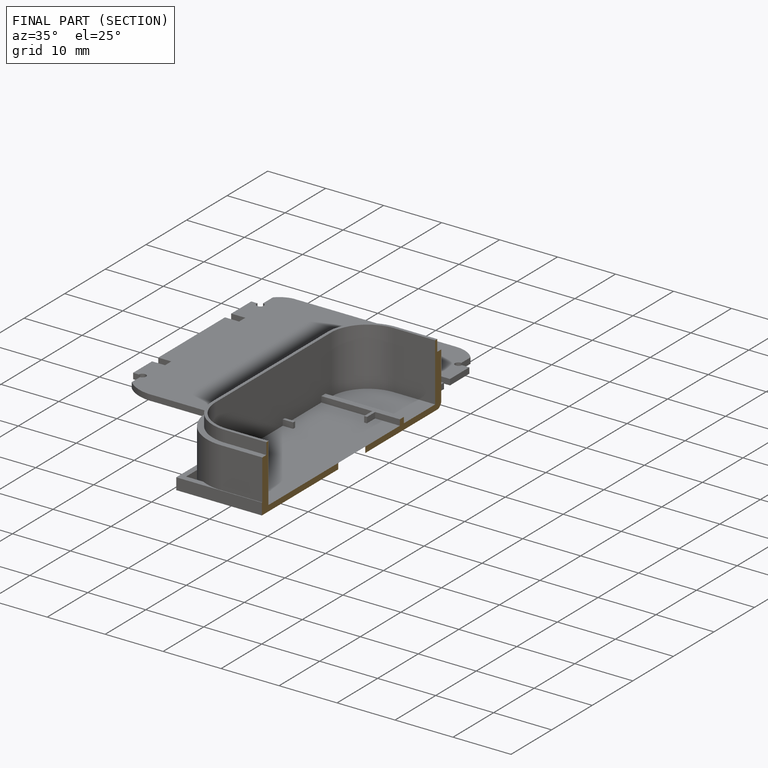
[diagram: finished part — half-section view (interior)]
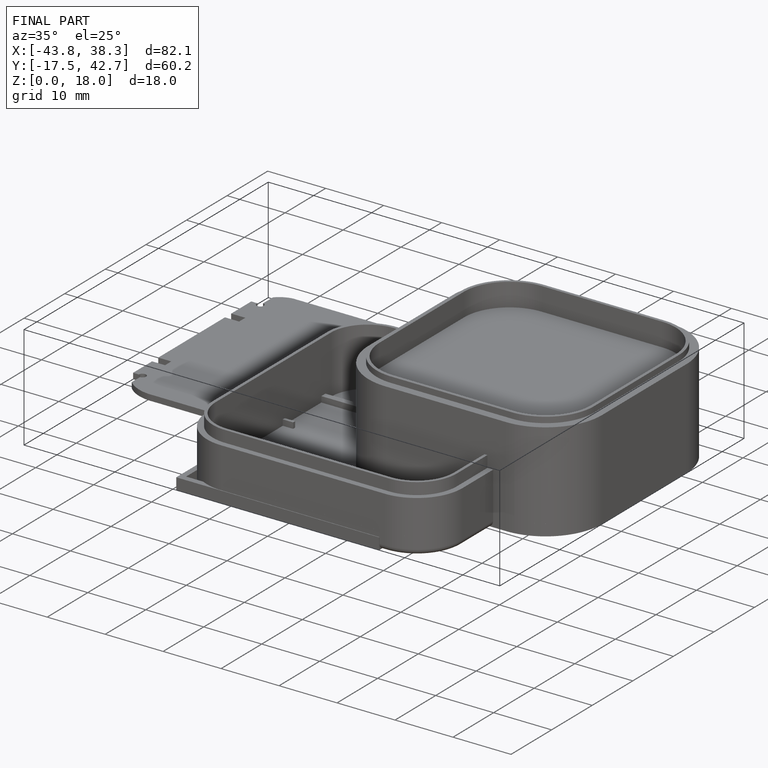
[diagram: finished part — iso view with bounding-box wireframe]
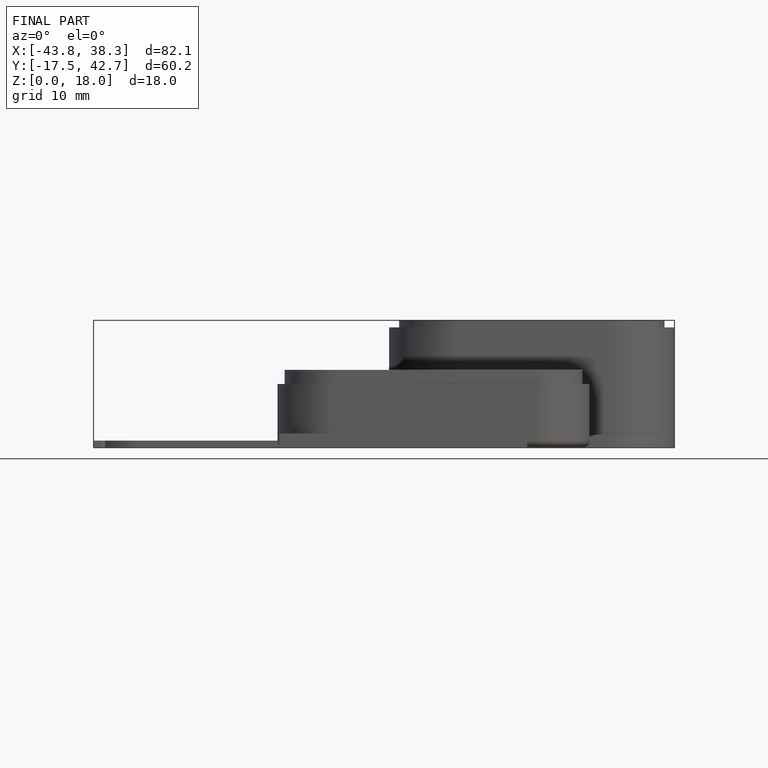
[diagram: finished part — front view with bounding-box wireframe]
